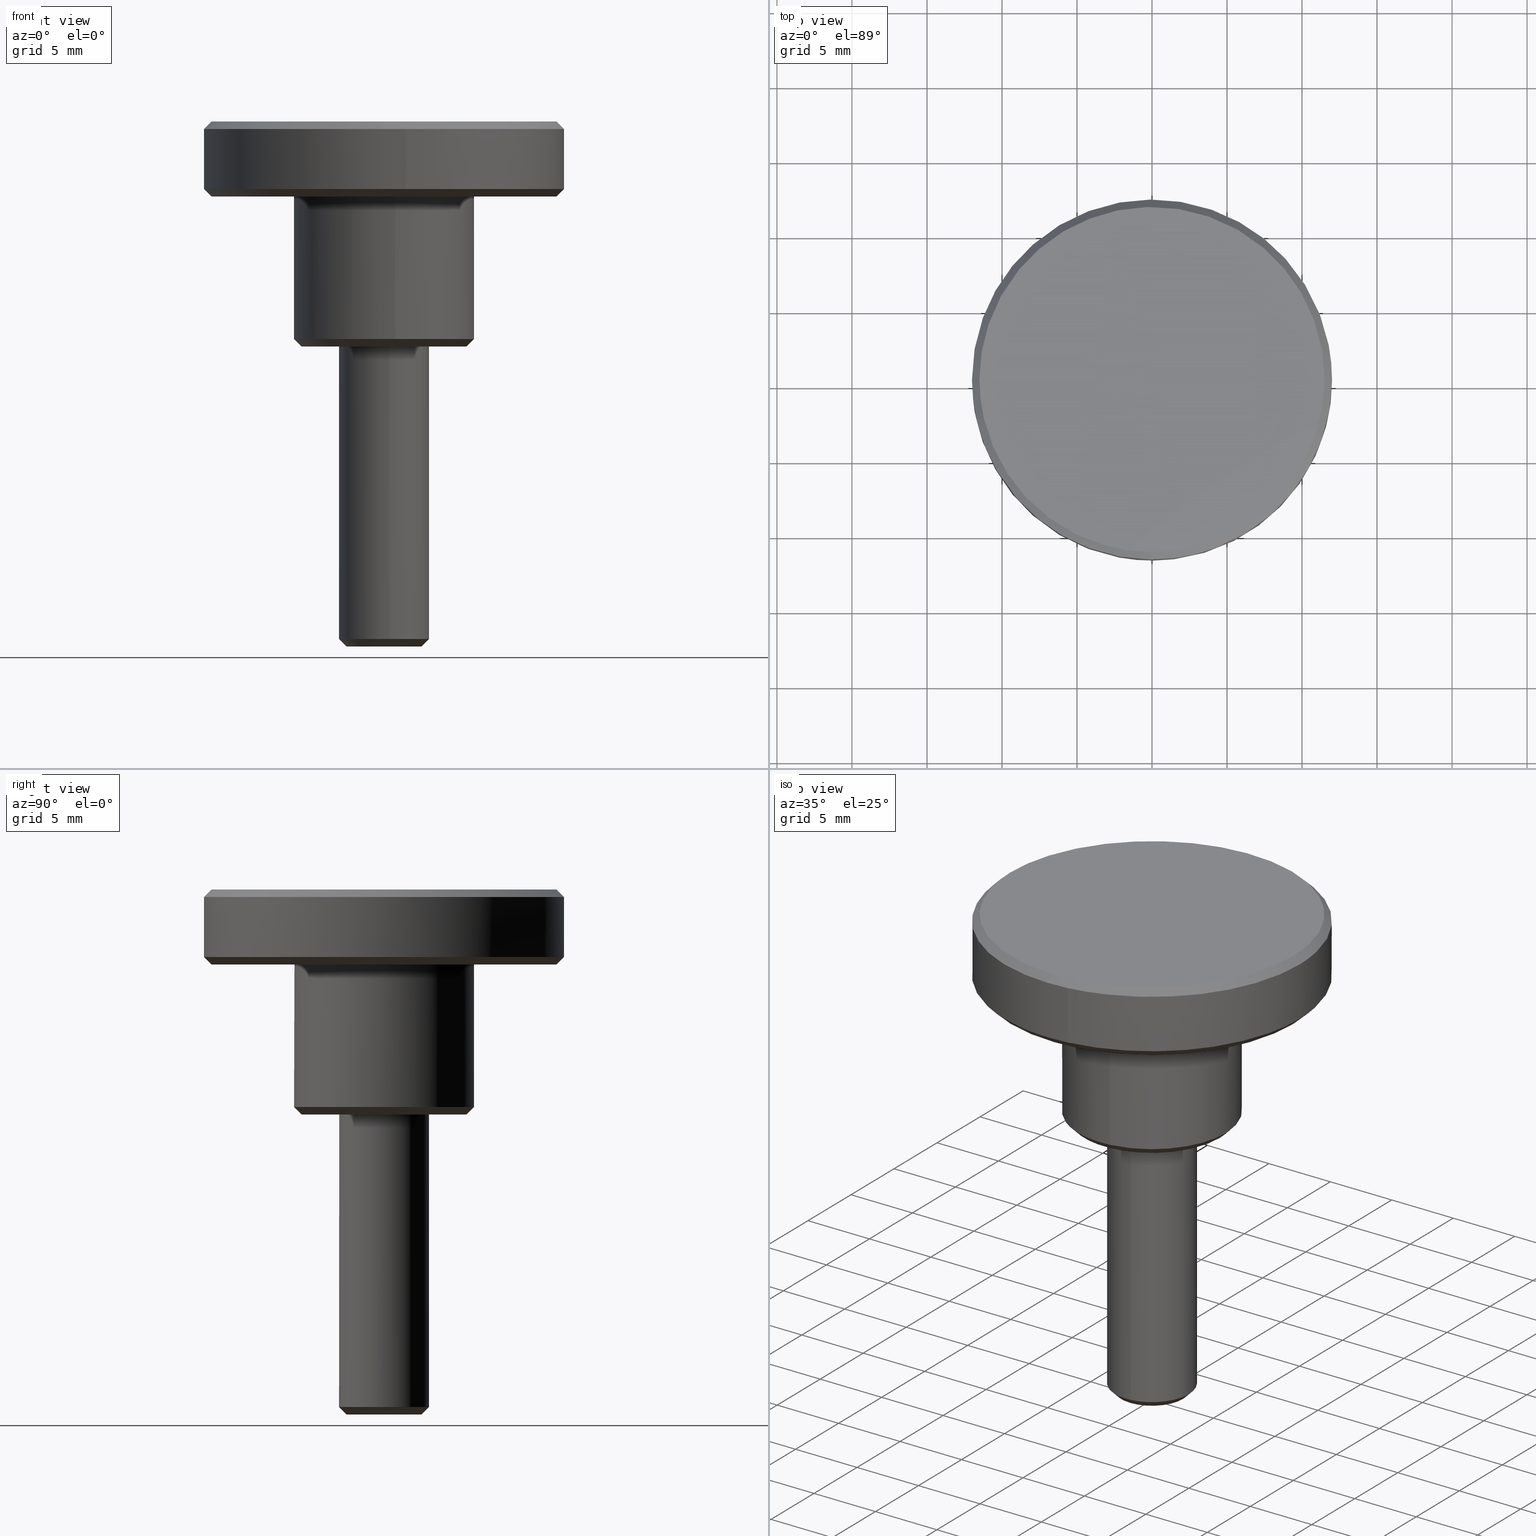
[diagram: canonical four-view strip — front | top / right | iso, engineering-drawing reading convention]
A machine part, canonical four-view strip (front | top / right | iso — engineering-drawing reading convention). The complete STEP part file that produces these views, byte-faithful:
ISO-10303-21;
HEADER;
/****************************************************************
 * Generated by software with PDE/Lib inside                    *
 * PDElib Version 4.4.1-0003, patched  Thursday August 19 11:58 *
 * International Technegroup Inc. (www.iti-oh.com)              *
 ****************************************************************/
FILE_DESCRIPTION((''),'2;1');
FILE_NAME('','2005-07-15T10:51:05',(''),(''),'','CADfix','');
FILE_SCHEMA(('AUTOMOTIVE_DESIGN'));
ENDSEC;
DATA;
#5=APPLICATION_CONTEXT('automotive design');
#6=APPLICATION_PROTOCOL_DEFINITION('Draft International Standard','automotive_design',1998,#5);
#7=PRODUCT_CONTEXT('None',#5,'mechanical');
#8=PRODUCT('knob','','None',(#7));
#9=PRODUCT_RELATED_PRODUCT_CATEGORY('part','description',(#8));
#10=PRODUCT_DEFINITION_FORMATION('None','None',#8);
#11=PRODUCT_DEFINITION_CONTEXT('part definition',#5,'design');
#12=PRODUCT_DEFINITION('None','None',#10,#11);
#18=(NAMED_UNIT(*)PLANE_ANGLE_UNIT()SI_UNIT($,.RADIAN.));
#19=DIMENSIONAL_EXPONENTS(0.0,0.0,0.0,0.0,0.0,0.0,0.0);
#20=PLANE_ANGLE_MEASURE_WITH_UNIT(PLANE_ANGLE_MEASURE(0.017453292500000),#18);
#24=(CONVERSION_BASED_UNIT('DEGREE',#20)NAMED_UNIT(#19)PLANE_ANGLE_UNIT());
#28=(NAMED_UNIT(*)SI_UNIT($,.STERADIAN.)SOLID_ANGLE_UNIT());
#32=(LENGTH_UNIT()NAMED_UNIT(*)SI_UNIT(.MILLI.,.METRE.));
#34=UNCERTAINTY_MEASURE_WITH_UNIT(LENGTH_MEASURE(0.001000000000000),#32,'DISTANCE_ACCURACY_VALUE','');
#36=(GEOMETRIC_REPRESENTATION_CONTEXT(3)GLOBAL_UNCERTAINTY_ASSIGNED_CONTEXT((#34))GLOBAL_UNIT_ASSIGNED_CONTEXT((#24,#28,#32))REPRESENTATION_CONTEXT('None','None'));
#37=AXIS2_PLACEMENT_3D('',#38,#39,#40);
#38=CARTESIAN_POINT('',(0.0,0.0,0.0));
#39=DIRECTION('',(0.0,0.0,1.0));
#40=DIRECTION('',(1.0,0.0,0.0));
#41=ADVANCED_BREP_SHAPE_REPRESENTATION('',(#37,#1267),#36);
#42=PRODUCT_DEFINITION_SHAPE('','',#12);
#43=SHAPE_DEFINITION_REPRESENTATION(#42,#41);
#44=CARTESIAN_POINT('',(-1.005485887069837,-2.275226226313193,-20.012500000000003));
#45=CARTESIAN_POINT('',(-0.514770454620326,-2.492087053684579,-20.012500000000003));
#46=CARTESIAN_POINT('',(0.021707257052205,-2.487405283622124,-20.012499999999999));
#47=CARTESIAN_POINT('',(2.509112540674328,-2.465698026569919,-20.012500000000010));
#48=CARTESIAN_POINT('',(2.487405283622124,0.021707257052205,-20.012499999999999));
#49=CARTESIAN_POINT('',(2.465698026569919,2.509112540674328,-20.012500000000010));
#50=CARTESIAN_POINT('',(-0.021707257052205,2.487405283622124,-20.012499999999999));
#51=CARTESIAN_POINT('',(-1.217825306185946,-2.755710558779538,-19.487187500000001));
#52=CARTESIAN_POINT('',(-0.623480144848552,-3.018368251830732,-19.487187499999997));
#53=CARTESIAN_POINT('',(0.026291415231194,-3.012697781331720,-19.487187500000001));
#54=CARTESIAN_POINT('',(3.038989196562915,-2.986406366100526,-19.487187499999994));
#55=CARTESIAN_POINT('',(3.012697781331720,0.026291415231194,-19.487187500000001));
#56=CARTESIAN_POINT('',(2.986406366100526,3.038989196562915,-19.487187499999994));
#57=CARTESIAN_POINT('',(-0.026291415231194,3.012697781331720,-19.487187500000001));
#65=(BOUNDED_SURFACE()B_SPLINE_SURFACE(2,1,((#44,#51),(#45,#52),(#46,#53),(#47,#54),(#48,#55),(#49,#56),(#50,#57)),.UNSPECIFIED.,.F.,.F.,.U.)B_SPLINE_SURFACE_WITH_KNOTS((3,2,2,3),(2,2),(0.0,1.397701534193629,6.389492727742304,11.381283921290979),(0.0,1.0),.UNSPECIFIED.)GEOMETRIC_REPRESENTATION_ITEM()RATIONAL_B_SPLINE_SURFACE(((0.881905454174416,0.881905454174416),(0.917989898732233,0.917989898732233),(1.0,1.0),(0.707106781186548,0.707106781186548),(1.0,1.0),(0.707106781186548,0.707106781186548),(1.0,1.0)))REPRESENTATION_ITEM('')SURFACE());
#66=CARTESIAN_POINT('',(-1.212646295969690,-2.743991428717334,-19.499999999999439));
#67=VERTEX_POINT('',#66);
#68=CARTESIAN_POINT('',(0.372382066943663,-2.976798884072443,-19.500000000000000));
#69=VERTEX_POINT('',#68);
#70=CARTESIAN_POINT('',(-1.212646295969691,-2.743991428717334,-19.499999999999439));
#71=CARTESIAN_POINT('',(-0.633346851762329,-3.000000000000000,-19.499999999999996));
#72=CARTESIAN_POINT('',(0.0,-3.0,-19.500000000000000));
#73=CARTESIAN_POINT('',(0.186913801601755,-3.000000000000000,-19.500000000000004));
#74=CARTESIAN_POINT('',(0.372382066943663,-2.976798884072443,-19.500000000000000));
#82=(BOUNDED_CURVE()B_SPLINE_CURVE(2,(#70,#71,#72,#73,#74),.UNSPECIFIED.,.F.,.U.)B_SPLINE_CURVE_WITH_KNOTS((3,2,3),(0.181361578459268,0.250000000000000,0.271473819102889),.UNSPECIFIED.)CURVE()GEOMETRIC_REPRESENTATION_ITEM()RATIONAL_B_SPLINE_CURVE((0.883326595751182,0.919585087122641,1.0,0.974841856010948,0.954005643485778))REPRESENTATION_ITEM(''));
#83=EDGE_CURVE('',#67,#69,#82,.T.);
#84=ORIENTED_EDGE('',*,*,#83,.F.);
#85=CARTESIAN_POINT('',(-1.010538579982970,-2.286659523928262,-19.999999999998838));
#86=VERTEX_POINT('',#85);
#87=CARTESIAN_POINT('',(-1.010538579982970,-2.286659523928262,-19.999999999998838));
#88=CARTESIAN_POINT('',(-1.212646295969690,-2.743991428717334,-19.499999999999439));
#89=QUASI_UNIFORM_CURVE('',1,(#87,#88),.UNSPECIFIED.,.F.,.U.);
#90=EDGE_CURVE('',#86,#67,#89,.T.);
#91=ORIENTED_EDGE('',*,*,#90,.F.);
#92=CARTESIAN_POINT('',(2.500000000000000,0.0,-20.0));
#93=VERTEX_POINT('',#92);
#94=CARTESIAN_POINT('',(2.500000000000000,0.0,-20.0));
#95=CARTESIAN_POINT('',(2.500000000000000,-2.500000000000000,-19.999999999999996));
#96=CARTESIAN_POINT('',(0.0,-2.500000000000000,-20.0));
#97=CARTESIAN_POINT('',(-0.527789043144343,-2.500000000000000,-20.000000000000004));
#98=CARTESIAN_POINT('',(-1.010538579982970,-2.286659523928262,-19.999999999998838));
#106=(BOUNDED_CURVE()B_SPLINE_CURVE(2,(#94,#95,#96,#97,#98),.UNSPECIFIED.,.F.,.U.)B_SPLINE_CURVE_WITH_KNOTS((3,2,3),(0.500000000000000,0.750000000000000,0.818638421541817),.UNSPECIFIED.)CURVE()GEOMETRIC_REPRESENTATION_ITEM()RATIONAL_B_SPLINE_CURVE((1.0,0.707106781186548,1.0,0.919585087121370,0.883326595750036))REPRESENTATION_ITEM(''));
#107=EDGE_CURVE('',#93,#86,#106,.T.);
#108=ORIENTED_EDGE('',*,*,#107,.F.);
#109=CARTESIAN_POINT('',(-0.021816338889842,2.499904807678794,-19.999999999980378));
#110=VERTEX_POINT('',#109);
#111=CARTESIAN_POINT('',(-0.021816338889842,2.499904807678794,-19.999999999980385));
#112=CARTESIAN_POINT('',(-0.010908377195498,2.500000000000000,-19.999999999999996));
#113=CARTESIAN_POINT('',(0.0,2.500000000000000,-20.0));
#114=CARTESIAN_POINT('',(2.500000000000000,2.500000000000000,-19.999999999999996));
#115=CARTESIAN_POINT('',(2.500000000000000,0.0,-20.0));
#123=(BOUNDED_CURVE()B_SPLINE_CURVE(2,(#111,#112,#113,#114,#115),.UNSPECIFIED.,.F.,.U.)B_SPLINE_CURVE_WITH_KNOTS((3,2,3),(0.248460105644758,0.250000000000000,0.500000000000000),.UNSPECIFIED.)CURVE()GEOMETRIC_REPRESENTATION_ITEM()RATIONAL_B_SPLINE_CURVE((0.996414028053530,0.998195901542642,1.0,0.707106781186548,1.0))REPRESENTATION_ITEM(''));
#124=EDGE_CURVE('',#110,#93,#123,.T.);
#125=ORIENTED_EDGE('',*,*,#124,.F.);
#126=CARTESIAN_POINT('',(-0.026179606512021,2.999885769192334,-19.500000000000000));
#127=VERTEX_POINT('',#126);
#128=CARTESIAN_POINT('',(-0.021816338889842,2.499904807678794,-19.999999999980378));
#129=CARTESIAN_POINT('',(-0.026179606512021,2.999885769192334,-19.500000000000000));
#130=QUASI_UNIFORM_CURVE('',1,(#128,#129),.UNSPECIFIED.,.F.,.U.);
#131=EDGE_CURVE('',#110,#127,#130,.T.);
#132=ORIENTED_EDGE('',*,*,#131,.T.);
#133=CARTESIAN_POINT('',(3.0,0.0,-19.500000000000000));
#134=VERTEX_POINT('',#133);
#135=CARTESIAN_POINT('',(3.0,0.0,-19.500000000000000));
#136=CARTESIAN_POINT('',(3.0,3.0,-19.500000000000004));
#137=CARTESIAN_POINT('',(0.0,3.0,-19.500000000000000));
#138=CARTESIAN_POINT('',(-0.013090052495911,3.000000000000000,-19.500000000000007));
#139=CARTESIAN_POINT('',(-0.026179606512021,2.999885769192333,-19.500000000000004));
#147=(BOUNDED_CURVE()B_SPLINE_CURVE(2,(#135,#136,#137,#138,#139),.UNSPECIFIED.,.F.,.U.)B_SPLINE_CURVE_WITH_KNOTS((3,2,3),(0.500000000000000,0.750000000000000,0.751539894338957),.UNSPECIFIED.)CURVE()GEOMETRIC_REPRESENTATION_ITEM()RATIONAL_B_SPLINE_CURVE((1.0,0.707106781186548,1.0,0.998195901561721,0.996414028091219))REPRESENTATION_ITEM(''));
#148=EDGE_CURVE('',#134,#127,#147,.T.);
#149=ORIENTED_EDGE('',*,*,#148,.F.);
#150=CARTESIAN_POINT('',(0.372382066943663,-2.976798884072443,-19.500000000000000));
#151=CARTESIAN_POINT('',(3.000000000000000,-2.648097539052714,-19.499999999999996));
#152=CARTESIAN_POINT('',(3.0,0.0,-19.500000000000000));
#160=(BOUNDED_CURVE()B_SPLINE_CURVE(2,(#150,#151,#152),.UNSPECIFIED.,.F.,.U.)B_SPLINE_CURVE_WITH_KNOTS((3,3),(0.271473819102889,0.500000000000000),.UNSPECIFIED.)CURVE()GEOMETRIC_REPRESENTATION_ITEM()RATIONAL_B_SPLINE_CURVE((0.954005643485778,0.732264925175600,1.0))REPRESENTATION_ITEM(''));
#161=EDGE_CURVE('',#69,#134,#160,.T.);
#162=ORIENTED_EDGE('',*,*,#161,.F.);
#163=EDGE_LOOP('',(#84,#91,#108,#125,#132,#149,#162));
#164=FACE_OUTER_BOUND('',#163,.T.);
#165=ADVANCED_FACE('',(#164),#65,.T.);
#166=CARTESIAN_POINT('',(-0.021707257052205,2.487405283622124,-20.012499999999999));
#167=CARTESIAN_POINT('',(-2.509112540674328,2.465698026569919,-20.012500000000010));
#168=CARTESIAN_POINT('',(-2.487405283622124,-0.021707257052205,-20.012499999999999));
#169=CARTESIAN_POINT('',(-2.473400348126789,-1.626513910610781,-20.012500000000006));
#170=CARTESIAN_POINT('',(-1.005485887069837,-2.275226226313193,-20.012500000000003));
#171=CARTESIAN_POINT('',(-0.026291415231194,3.012697781331720,-19.487187500000001));
#172=CARTESIAN_POINT('',(-3.038989196562915,2.986406366100526,-19.487187499999994));
#173=CARTESIAN_POINT('',(-3.012697781331720,-0.026291415231194,-19.487187500000001));
#174=CARTESIAN_POINT('',(-2.995735270890699,-1.970002589472146,-19.487187499999997));
#175=CARTESIAN_POINT('',(-1.217825306185946,-2.755710558779538,-19.487187500000001));
#183=(BOUNDED_SURFACE()B_SPLINE_SURFACE(2,1,((#166,#171),(#167,#172),(#168,#173),(#169,#174),(#170,#175)),.UNSPECIFIED.,.F.,.F.,.U.)B_SPLINE_SURFACE_WITH_KNOTS((3,2,3),(2,2),(0.0,4.991791193548674,8.585880852903719),(0.0,1.0),.UNSPECIFIED.)GEOMETRIC_REPRESENTATION_ITEM()RATIONAL_B_SPLINE_SURFACE(((1.0,1.0),(0.707106781186548,0.707106781186548),(1.0,1.0),(0.789116882454314,0.789116882454314),(0.881905454174416,0.881905454174416)))REPRESENTATION_ITEM('')SURFACE());
#184=CARTESIAN_POINT('',(-3.0,0.0,-19.500000000000000));
#185=VERTEX_POINT('',#184);
#186=CARTESIAN_POINT('',(-3.0,0.0,-19.500000000000000));
#187=CARTESIAN_POINT('',(-2.999999999999999,-1.954110007765768,-19.499999999999989));
#188=CARTESIAN_POINT('',(-1.212646295969691,-2.743991428717334,-19.499999999999439));
#196=(BOUNDED_CURVE()B_SPLINE_CURVE(2,(#186,#187,#188),.UNSPECIFIED.,.F.,.U.)B_SPLINE_CURVE_WITH_KNOTS((3,3),(0.0,0.181361578459268),.UNSPECIFIED.)CURVE()GEOMETRIC_REPRESENTATION_ITEM()RATIONAL_B_SPLINE_CURVE((1.0,0.787521694063906,0.883326595751182))REPRESENTATION_ITEM(''));
#197=EDGE_CURVE('',#185,#67,#196,.T.);
#198=ORIENTED_EDGE('',*,*,#197,.F.);
#199=CARTESIAN_POINT('',(-0.026179606512021,2.999885769192334,-19.500000000000004));
#200=CARTESIAN_POINT('',(-3.000000000000000,2.973933631717919,-19.500000000000004));
#201=CARTESIAN_POINT('',(-3.0,0.0,-19.500000000000000));
#209=(BOUNDED_CURVE()B_SPLINE_CURVE(2,(#199,#200,#201),.UNSPECIFIED.,.F.,.U.)B_SPLINE_CURVE_WITH_KNOTS((3,3),(0.751539894338956,1.0),.UNSPECIFIED.)CURVE()GEOMETRIC_REPRESENTATION_ITEM()RATIONAL_B_SPLINE_CURVE((0.996414028091220,0.708910879624826,1.0))REPRESENTATION_ITEM(''));
#210=EDGE_CURVE('',#127,#185,#209,.T.);
#211=ORIENTED_EDGE('',*,*,#210,.F.);
#212=ORIENTED_EDGE('',*,*,#131,.F.);
#213=CARTESIAN_POINT('',(-2.500000000000000,0.0,-20.0));
#214=VERTEX_POINT('',#213);
#215=CARTESIAN_POINT('',(-2.500000000000000,0.0,-20.0));
#216=CARTESIAN_POINT('',(-2.500000000000000,2.478278026202450,-20.000000000000004));
#217=CARTESIAN_POINT('',(-0.021816338889842,2.499904807678794,-19.999999999980385));
#225=(BOUNDED_CURVE()B_SPLINE_CURVE(2,(#215,#216,#217),.UNSPECIFIED.,.F.,.U.)B_SPLINE_CURVE_WITH_KNOTS((3,3),(0.0,0.248460105644758),.UNSPECIFIED.)CURVE()GEOMETRIC_REPRESENTATION_ITEM()RATIONAL_B_SPLINE_CURVE((1.0,0.708910879643906,0.996414028053530))REPRESENTATION_ITEM(''));
#226=EDGE_CURVE('',#214,#110,#225,.T.);
#227=ORIENTED_EDGE('',*,*,#226,.F.);
#228=CARTESIAN_POINT('',(-1.010538579982970,-2.286659523928262,-19.999999999998838));
#229=CARTESIAN_POINT('',(-2.500000000000000,-1.628425006459115,-20.000000000000004));
#230=CARTESIAN_POINT('',(-2.500000000000000,0.0,-20.0));
#238=(BOUNDED_CURVE()B_SPLINE_CURVE(2,(#228,#229,#230),.UNSPECIFIED.,.F.,.U.)B_SPLINE_CURVE_WITH_KNOTS((3,3),(0.818638421541816,1.0),.UNSPECIFIED.)CURVE()GEOMETRIC_REPRESENTATION_ITEM()RATIONAL_B_SPLINE_CURVE((0.883326595750036,0.787521694065176,1.0))REPRESENTATION_ITEM(''));
#239=EDGE_CURVE('',#86,#214,#238,.T.);
#240=ORIENTED_EDGE('',*,*,#239,.F.);
#241=ORIENTED_EDGE('',*,*,#90,.T.);
#242=EDGE_LOOP('',(#198,#211,#212,#227,#240,#241));
#243=FACE_OUTER_BOUND('',#242,.T.);
#244=ADVANCED_FACE('',(#243),#183,.T.);
#245=CARTESIAN_POINT('',(-11.191331034639012,-2.591672418174083,15.012500000000003));
#246=CARTESIAN_POINT('',(-11.498961770299591,-1.263264794176366,15.012500000000003));
#247=CARTESIAN_POINT('',(-11.487062591199610,0.100246076537570,15.012499999999999));
#248=CARTESIAN_POINT('',(-11.386816514662039,11.587308667737178,15.012500000000008));
#249=CARTESIAN_POINT('',(0.100246076537570,11.487062591199610,15.012499999999999));
#250=CARTESIAN_POINT('',(11.587308667737178,11.386816514662039,15.012500000000008));
#251=CARTESIAN_POINT('',(11.487062591199610,-0.100246076537570,15.012499999999999));
#252=CARTESIAN_POINT('',(11.386816514662039,-11.587308667737178,15.012500000000008));
#253=CARTESIAN_POINT('',(-0.100246076537570,-11.487062591199610,15.012499999999999));
#254=CARTESIAN_POINT('',(-11.703100008230697,-2.710187144369708,14.487187499999997));
#255=CARTESIAN_POINT('',(-12.024798406204811,-1.321032697305058,14.487187500000001));
#256=CARTESIAN_POINT('',(-12.012355088909320,0.104830234716560,14.487187499999999));
#257=CARTESIAN_POINT('',(-11.907524854192760,12.117185323625877,14.487187500000005));
#258=CARTESIAN_POINT('',(0.104830234716560,12.012355088909320,14.487187499999999));
#259=CARTESIAN_POINT('',(12.117185323625877,11.907524854192760,14.487187500000005));
#260=CARTESIAN_POINT('',(12.012355088909320,-0.104830234716560,14.487187499999999));
#261=CARTESIAN_POINT('',(11.907524854192760,-12.117185323625877,14.487187500000005));
#262=CARTESIAN_POINT('',(-0.104830234716560,-12.012355088909320,14.487187499999999));
#270=(BOUNDED_SURFACE()B_SPLINE_SURFACE(2,1,((#245,#254),(#246,#255),(#247,#256),(#248,#257),(#249,#258),(#250,#259),(#251,#260),(#252,#261),(#253,#262)),.UNSPECIFIED.,.F.,.F.,.U.)B_SPLINE_SURFACE_WITH_KNOTS((3,2,2,2,3),(2,2),(0.0,3.184556710236832,23.088036149217022,42.991515588197210,62.894995027177401),(0.0,1.0),.UNSPECIFIED.)GEOMETRIC_REPRESENTATION_ITEM()RATIONAL_B_SPLINE_SURFACE(((0.921270302782944,0.921270302782944),(0.953137084989848,0.953137084989848),(1.0,1.0),(0.707106781186548,0.707106781186548),(1.0,1.0),(0.707106781186548,0.707106781186548),(1.0,1.0),(0.707106781186548,0.707106781186548),(1.0,1.0)))REPRESENTATION_ITEM('')SURFACE());
#271=CARTESIAN_POINT('',(-11.690617838139930,-2.707296541319701,14.499999999996790));
#272=VERTEX_POINT('',#271);
#273=CARTESIAN_POINT('',(-12.0,0.0,14.500000000000000));
#274=VERTEX_POINT('',#273);
#275=CARTESIAN_POINT('',(-11.690617838139930,-2.707296541319702,14.499999999996792));
#276=CARTESIAN_POINT('',(-12.0,-1.371325928185162,14.499999999999998));
#277=CARTESIAN_POINT('',(-12.0,0.0,14.500000000000000));
#285=(BOUNDED_CURVE()B_SPLINE_CURVE(2,(#275,#276,#277),.UNSPECIFIED.,.F.,.U.)B_SPLINE_CURVE_WITH_KNOTS((3,3),(0.961422971783849,1.0),.UNSPECIFIED.)CURVE()GEOMETRIC_REPRESENTATION_ITEM()RATIONAL_B_SPLINE_CURVE((0.923556557441553,0.954804200134057,1.0))REPRESENTATION_ITEM(''));
#286=EDGE_CURVE('',#272,#274,#285,.T.);
#287=ORIENTED_EDGE('',*,*,#286,.F.);
#288=CARTESIAN_POINT('',(-11.203508761551619,-2.594492518757125,14.999999999997771));
#289=VERTEX_POINT('',#288);
#290=CARTESIAN_POINT('',(-11.203508761551619,-2.594492518757125,14.999999999997771));
#291=CARTESIAN_POINT('',(-11.690617838139930,-2.707296541319701,14.499999999996790));
#292=QUASI_UNIFORM_CURVE('',1,(#290,#291),.UNSPECIFIED.,.F.,.U.);
#293=EDGE_CURVE('',#289,#272,#292,.T.);
#294=ORIENTED_EDGE('',*,*,#293,.F.);
#295=CARTESIAN_POINT('',(-11.500000000000000,0.0,15.0));
#296=VERTEX_POINT('',#295);
#297=CARTESIAN_POINT('',(-11.500000000000000,0.0,15.0));
#298=CARTESIAN_POINT('',(-11.500000000000002,-1.314187347836439,15.0));
#299=CARTESIAN_POINT('',(-11.203508761551621,-2.594492518757125,14.999999999997772));
#307=(BOUNDED_CURVE()B_SPLINE_CURVE(2,(#297,#298,#299),.UNSPECIFIED.,.F.,.U.)B_SPLINE_CURVE_WITH_KNOTS((3,3),(0.500000000000000,0.538577028215936),.UNSPECIFIED.)CURVE()GEOMETRIC_REPRESENTATION_ITEM()RATIONAL_B_SPLINE_CURVE((1.0,0.954804200134309,0.923556557441902))REPRESENTATION_ITEM(''));
#308=EDGE_CURVE('',#296,#289,#307,.T.);
#309=ORIENTED_EDGE('',*,*,#308,.F.);
#310=CARTESIAN_POINT('',(11.500000000000000,0.0,15.0));
#311=VERTEX_POINT('',#310);
#312=CARTESIAN_POINT('',(11.500000000000000,0.0,15.0));
#313=CARTESIAN_POINT('',(11.500000000000000,11.500000000000000,14.999999999999995));
#314=CARTESIAN_POINT('',(0.0,11.500000000000000,15.0));
#315=CARTESIAN_POINT('',(-11.500000000000000,11.500000000000000,14.999999999999995));
#316=CARTESIAN_POINT('',(-11.500000000000000,0.0,15.0));
#324=(BOUNDED_CURVE()B_SPLINE_CURVE(2,(#312,#313,#314,#315,#316),.UNSPECIFIED.,.F.,.U.)B_SPLINE_CURVE_WITH_KNOTS((3,2,3),(0.0,0.250000000000000,0.500000000000000),.UNSPECIFIED.)CURVE()GEOMETRIC_REPRESENTATION_ITEM()RATIONAL_B_SPLINE_CURVE((1.0,0.707106781186548,1.0,0.707106781186548,1.0))REPRESENTATION_ITEM(''));
#325=EDGE_CURVE('',#311,#296,#324,.T.);
#326=ORIENTED_EDGE('',*,*,#325,.F.);
#327=CARTESIAN_POINT('',(-0.100355158268705,-11.499562115242711,14.999999999994900));
#328=VERTEX_POINT('',#327);
#329=CARTESIAN_POINT('',(-0.100355158268705,-11.499562115242719,14.999999999994898));
#330=CARTESIAN_POINT('',(-0.050178534475431,-11.500000000000002,15.000000000000004));
#331=CARTESIAN_POINT('',(0.0,-11.500000000000000,15.0));
#332=CARTESIAN_POINT('',(11.500000000000000,-11.500000000000000,14.999999999999995));
#333=CARTESIAN_POINT('',(11.500000000000000,0.0,15.0));
#341=(BOUNDED_CURVE()B_SPLINE_CURVE(2,(#329,#330,#331,#332,#333),.UNSPECIFIED.,.F.,.U.)B_SPLINE_CURVE_WITH_KNOTS((3,2,3),(0.748460105663868,0.750000000000000,1.0),.UNSPECIFIED.)CURVE()GEOMETRIC_REPRESENTATION_ITEM()RATIONAL_B_SPLINE_CURVE((0.996414028097757,0.998195901565031,1.0,0.707106781186548,1.0))REPRESENTATION_ITEM(''));
#342=EDGE_CURVE('',#328,#311,#341,.T.);
#343=ORIENTED_EDGE('',*,*,#342,.F.);
#344=CARTESIAN_POINT('',(-0.104718426021248,-11.999543076775240,14.499999999994460));
#345=VERTEX_POINT('',#344);
#346=CARTESIAN_POINT('',(-0.100355158268705,-11.499562115242711,14.999999999994900));
#347=CARTESIAN_POINT('',(-0.104718426021248,-11.999543076775240,14.499999999994460));
#348=QUASI_UNIFORM_CURVE('',1,(#346,#347),.UNSPECIFIED.,.F.,.U.);
#349=EDGE_CURVE('',#328,#345,#348,.T.);
#350=ORIENTED_EDGE('',*,*,#349,.T.);
#351=CARTESIAN_POINT('',(1.489527390637061,-11.907195646014481,14.499999999999980));
#352=VERTEX_POINT('',#351);
#353=CARTESIAN_POINT('',(1.489527390637061,-11.907195646014477,14.499999999999979));
#354=CARTESIAN_POINT('',(0.747654762704336,-11.999999999999995,14.500000000000000));
#355=CARTESIAN_POINT('',(0.0,-12.0,14.500000000000000));
#356=CARTESIAN_POINT('',(-0.052360209889139,-12.0,14.500000000000002));
#357=CARTESIAN_POINT('',(-0.104718426021248,-11.999543076775232,14.499999999994460));
#365=(BOUNDED_CURVE()B_SPLINE_CURVE(2,(#353,#354,#355,#356,#357),.UNSPECIFIED.,.F.,.U.)B_SPLINE_CURVE_WITH_KNOTS((3,2,3),(0.728526193320330,0.750000000000000,0.751539894336183),.UNSPECIFIED.)CURVE()GEOMETRIC_REPRESENTATION_ITEM()RATIONAL_B_SPLINE_CURVE((0.954005667594471,0.974841870565655,1.0,0.998195901564972,0.996414028097639))REPRESENTATION_ITEM(''));
#366=EDGE_CURVE('',#352,#345,#365,.T.);
#367=ORIENTED_EDGE('',*,*,#366,.F.);
#368=CARTESIAN_POINT('',(12.0,0.0,14.500000000000000));
#369=VERTEX_POINT('',#368);
#370=CARTESIAN_POINT('',(12.0,0.0,14.500000000000000));
#371=CARTESIAN_POINT('',(12.000000000000002,-10.592390942575433,14.500000000000002));
#372=CARTESIAN_POINT('',(1.489527390637061,-11.907195646014477,14.499999999999979));
#380=(BOUNDED_CURVE()B_SPLINE_CURVE(2,(#370,#371,#372),.UNSPECIFIED.,.F.,.U.)B_SPLINE_CURVE_WITH_KNOTS((3,3),(0.500000000000000,0.728526193320330),.UNSPECIFIED.)CURVE()GEOMETRIC_REPRESENTATION_ITEM()RATIONAL_B_SPLINE_CURVE((1.0,0.732264910620893,0.954005667594471))REPRESENTATION_ITEM(''));
#381=EDGE_CURVE('',#369,#352,#380,.T.);
#382=ORIENTED_EDGE('',*,*,#381,.F.);
#383=CARTESIAN_POINT('',(-0.104707315146141,11.999543173722550,14.499999999999980));
#384=VERTEX_POINT('',#383);
#385=CARTESIAN_POINT('',(-0.104707315146141,11.999543173722550,14.499999999999979));
#386=CARTESIAN_POINT('',(-0.052354654113988,11.999999999999996,14.499999999999998));
#387=CARTESIAN_POINT('',(0.0,12.0,14.500000000000000));
#388=CARTESIAN_POINT('',(12.0,12.0,14.500000000000000));
#389=CARTESIAN_POINT('',(12.0,0.0,14.500000000000000));
#397=(BOUNDED_CURVE()B_SPLINE_CURVE(2,(#385,#386,#387,#388,#389),.UNSPECIFIED.,.F.,.U.)B_SPLINE_CURVE_WITH_KNOTS((3,2,3),(0.248460268762356,0.250000000000000,0.500000000000000),.UNSPECIFIED.)CURVE()GEOMETRIC_REPRESENTATION_ITEM()RATIONAL_B_SPLINE_CURVE((0.996414405553603,0.998196092646795,1.0,0.707106781186548,1.0))REPRESENTATION_ITEM(''));
#398=EDGE_CURVE('',#384,#369,#397,.T.);
#399=ORIENTED_EDGE('',*,*,#398,.F.);
#400=CARTESIAN_POINT('',(-12.0,0.0,14.500000000000000));
#401=CARTESIAN_POINT('',(-12.0,11.895745542278181,14.500000000000004));
#402=CARTESIAN_POINT('',(-0.104707315146141,11.999543173722550,14.499999999999979));
#410=(BOUNDED_CURVE()B_SPLINE_CURVE(2,(#400,#401,#402),.UNSPECIFIED.,.F.,.U.)B_SPLINE_CURVE_WITH_KNOTS((3,3),(0.0,0.248460268762356),.UNSPECIFIED.)CURVE()GEOMETRIC_REPRESENTATION_ITEM()RATIONAL_B_SPLINE_CURVE((1.0,0.708910688539752,0.996414405553603))REPRESENTATION_ITEM(''));
#411=EDGE_CURVE('',#274,#384,#410,.T.);
#412=ORIENTED_EDGE('',*,*,#411,.F.);
#413=EDGE_LOOP('',(#287,#294,#309,#326,#343,#350,#367,#382,#399,#412));
#414=FACE_OUTER_BOUND('',#413,.T.);
#415=ADVANCED_FACE('',(#414),#270,.T.);
#416=CARTESIAN_POINT('',(-0.100246076537570,-11.487062591199610,15.012499999999999));
#417=CARTESIAN_POINT('',(-9.149637732336018,-11.408089746632660,15.012500000000003));
#418=CARTESIAN_POINT('',(-11.191331034639012,-2.591672418174083,15.012500000000003));
#419=CARTESIAN_POINT('',(-0.104830234716560,-12.012355088909320,14.487187499999999));
#420=CARTESIAN_POINT('',(-9.568042004045996,-11.929770890922430,14.487187500000001));
#421=CARTESIAN_POINT('',(-11.703100008230697,-2.710187144369708,14.487187499999997));
#429=(BOUNDED_SURFACE()B_SPLINE_SURFACE(2,1,((#416,#419),(#417,#420),(#418,#421)),.UNSPECIFIED.,.F.,.F.,.U.)B_SPLINE_SURFACE_WITH_KNOTS((3,3),(2,2),(0.0,16.645809910381690),(0.0,1.0),.UNSPECIFIED.)GEOMETRIC_REPRESENTATION_ITEM()RATIONAL_B_SPLINE_SURFACE(((1.0,1.0),(0.753969696196700,0.753969696196700),(0.921270302782944,0.921270302782944)))REPRESENTATION_ITEM('')SURFACE());
#430=CARTESIAN_POINT('',(-0.104718426021248,-11.999543076775240,14.499999999994467));
#431=CARTESIAN_POINT('',(-9.557837021778731,-11.917046960510007,14.500000000000000));
#432=CARTESIAN_POINT('',(-11.690617838139929,-2.707296541319702,14.499999999996792));
#440=(BOUNDED_CURVE()B_SPLINE_CURVE(2,(#430,#431,#432),.UNSPECIFIED.,.F.,.U.)B_SPLINE_CURVE_WITH_KNOTS((3,3),(0.751539894336182,0.961422971783848),.UNSPECIFIED.)CURVE()GEOMETRIC_REPRESENTATION_ITEM()RATIONAL_B_SPLINE_CURVE((0.996414028097640,0.753549905437658,0.923556557441552))REPRESENTATION_ITEM(''));
#441=EDGE_CURVE('',#345,#272,#440,.T.);
#442=ORIENTED_EDGE('',*,*,#441,.F.);
#443=ORIENTED_EDGE('',*,*,#349,.F.);
#444=CARTESIAN_POINT('',(-11.203508761551614,-2.594492518757126,14.999999999997774));
#445=CARTESIAN_POINT('',(-9.159593812549700,-11.420503337157896,14.999999999999993));
#446=CARTESIAN_POINT('',(-0.100355158268705,-11.499562115242716,14.999999999994902));
#454=(BOUNDED_CURVE()B_SPLINE_CURVE(2,(#444,#445,#446),.UNSPECIFIED.,.F.,.U.)B_SPLINE_CURVE_WITH_KNOTS((3,3),(0.538577028215936,0.748460105663868),.UNSPECIFIED.)CURVE()GEOMETRIC_REPRESENTATION_ITEM()RATIONAL_B_SPLINE_CURVE((0.923556557441902,0.753549905437367,0.996414028097755))REPRESENTATION_ITEM(''));
#455=EDGE_CURVE('',#289,#328,#454,.T.);
#456=ORIENTED_EDGE('',*,*,#455,.F.);
#457=ORIENTED_EDGE('',*,*,#293,.T.);
#458=EDGE_LOOP('',(#442,#443,#456,#457));
#459=FACE_OUTER_BOUND('',#458,.T.);
#460=ADVANCED_FACE('',(#459),#429,.T.);
#461=CARTESIAN_POINT('',(9.406724469765697,-6.593647776452057,9.987500000000001));
#462=CARTESIAN_POINT('',(11.519179152623552,-3.579947343821037,9.987499999999999));
#463=CARTESIAN_POINT('',(11.487062591199660,0.100246076537570,9.987499999999999));
#464=CARTESIAN_POINT('',(11.386816514662092,11.587308667737231,9.987499999999999));
#465=CARTESIAN_POINT('',(-0.100246076537570,11.487062591199660,9.987499999999999));
#466=CARTESIAN_POINT('',(-11.587308667737231,11.386816514662092,9.987499999999999));
#467=CARTESIAN_POINT('',(-11.487062591199660,-0.100246076537570,9.987499999999999));
#468=CARTESIAN_POINT('',(-11.386816514662092,-11.587308667737231,9.987499999999999));
#469=CARTESIAN_POINT('',(0.100246076537570,-11.487062591199660,9.987499999999999));
#470=CARTESIAN_POINT('',(9.836885074599064,-6.895169047186953,10.512812500000004));
#471=CARTESIAN_POINT('',(12.045940310282912,-3.743654946785199,10.512812500000003));
#472=CARTESIAN_POINT('',(12.012355088909260,0.104830234716559,10.512812500000001));
#473=CARTESIAN_POINT('',(11.907524854192697,12.117185323625815,10.512812500000003));
#474=CARTESIAN_POINT('',(-0.104830234716559,12.012355088909260,10.512812500000001));
#475=CARTESIAN_POINT('',(-12.117185323625815,11.907524854192697,10.512812500000003));
#476=CARTESIAN_POINT('',(-12.012355088909260,-0.104830234716559,10.512812500000001));
#477=CARTESIAN_POINT('',(-11.907524854192697,-12.117185323625815,10.512812500000003));
#478=CARTESIAN_POINT('',(0.104830234716559,-12.012355088909260,10.512812500000001));
#486=(BOUNDED_SURFACE()B_SPLINE_SURFACE(2,1,((#461,#470),(#462,#471),(#463,#472),(#464,#473),(#465,#474),(#466,#475),(#467,#476),(#468,#477),(#469,#478)),.UNSPECIFIED.,.F.,.F.,.U.)B_SPLINE_SURFACE_WITH_KNOTS((3,2,2,2,3),(2,2),(0.0,7.961391775592033,27.864871214572119,47.768350653552197,67.671830092532289),(0.0,1.0),.UNSPECIFIED.)GEOMETRIC_REPRESENTATION_ITEM()RATIONAL_B_SPLINE_SURFACE(((0.859411254969543,0.859411254969543),(0.882842712474619,0.882842712474619),(1.0,1.0),(0.707106781186548,0.707106781186548),(1.0,1.0),(0.707106781186548,0.707106781186548),(1.0,1.0),(0.707106781186548,0.707106781186548),(1.0,1.0)))REPRESENTATION_ITEM('')SURFACE());
#487=CARTESIAN_POINT('',(11.500000000000000,0.0,10.0));
#488=VERTEX_POINT('',#487);
#489=CARTESIAN_POINT('',(9.416960160105955,-6.600822446939864,9.999999810132522));
#490=VERTEX_POINT('',#489);
#491=CARTESIAN_POINT('',(11.500000000000000,0.0,10.0));
#492=CARTESIAN_POINT('',(11.500000000000000,-3.629086533558442,9.999999999999998));
#493=CARTESIAN_POINT('',(9.416960160105957,-6.600822446939864,9.999999810132524));
#501=(BOUNDED_CURVE()B_SPLINE_CURVE(2,(#491,#492,#493),.UNSPECIFIED.,.F.,.U.)B_SPLINE_CURVE_WITH_KNOTS((3,3),(0.0,0.098673725308851),.UNSPECIFIED.)CURVE()GEOMETRIC_REPRESENTATION_ITEM()RATIONAL_B_SPLINE_CURVE((1.0,0.884396539927905,0.860049272367063))REPRESENTATION_ITEM(''));
#502=EDGE_CURVE('',#488,#490,#501,.T.);
#503=ORIENTED_EDGE('',*,*,#502,.F.);
#504=CARTESIAN_POINT('',(-11.500000000000000,0.0,10.0));
#505=VERTEX_POINT('',#504);
#506=CARTESIAN_POINT('',(-11.500000000000000,0.0,10.0));
#507=CARTESIAN_POINT('',(-11.500000000000000,11.500000000000000,10.000000000000002));
#508=CARTESIAN_POINT('',(0.0,11.500000000000000,10.0));
#509=CARTESIAN_POINT('',(11.500000000000000,11.500000000000000,10.000000000000002));
#510=CARTESIAN_POINT('',(11.500000000000000,0.0,10.0));
#518=(BOUNDED_CURVE()B_SPLINE_CURVE(2,(#506,#507,#508,#509,#510),.UNSPECIFIED.,.F.,.U.)B_SPLINE_CURVE_WITH_KNOTS((3,2,3),(0.500000000000000,0.750000000000000,1.0),.UNSPECIFIED.)CURVE()GEOMETRIC_REPRESENTATION_ITEM()RATIONAL_B_SPLINE_CURVE((1.0,0.707106781186548,1.0,0.707106781186548,1.0))REPRESENTATION_ITEM(''));
#519=EDGE_CURVE('',#505,#488,#518,.T.);
#520=ORIENTED_EDGE('',*,*,#519,.F.);
#521=CARTESIAN_POINT('',(0.100355158268703,-11.499562115242730,10.000000000005089));
#522=VERTEX_POINT('',#521);
#523=CARTESIAN_POINT('',(0.100355158268703,-11.499562115242727,10.000000000005087));
#524=CARTESIAN_POINT('',(0.050178534475429,-11.500000000000000,10.0));
#525=CARTESIAN_POINT('',(0.0,-11.500000000000000,10.0));
#526=CARTESIAN_POINT('',(-11.500000000000000,-11.500000000000000,10.000000000000002));
#527=CARTESIAN_POINT('',(-11.500000000000000,0.0,10.0));
#535=(BOUNDED_CURVE()B_SPLINE_CURVE(2,(#523,#524,#525,#526,#527),.UNSPECIFIED.,.F.,.U.)B_SPLINE_CURVE_WITH_KNOTS((3,2,3),(0.248460105663868,0.250000000000000,0.500000000000000),.UNSPECIFIED.)CURVE()GEOMETRIC_REPRESENTATION_ITEM()RATIONAL_B_SPLINE_CURVE((0.996414028097757,0.998195901565031,1.0,0.707106781186548,1.0))REPRESENTATION_ITEM(''));
#536=EDGE_CURVE('',#522,#505,#535,.T.);
#537=ORIENTED_EDGE('',*,*,#536,.F.);
#538=CARTESIAN_POINT('',(0.104718430336935,-11.999543078500480,10.500000001768409));
#539=VERTEX_POINT('',#538);
#540=CARTESIAN_POINT('',(0.100355158268703,-11.499562115242730,10.000000000005089));
#541=CARTESIAN_POINT('',(0.104718430336935,-11.999543078500480,10.500000001768409));
#542=QUASI_UNIFORM_CURVE('',1,(#540,#541),.UNSPECIFIED.,.F.,.U.);
#543=EDGE_CURVE('',#522,#539,#542,.T.);
#544=ORIENTED_EDGE('',*,*,#543,.T.);
#545=CARTESIAN_POINT('',(-12.0,0.0,10.500000000000000));
#546=VERTEX_POINT('',#545);
#547=CARTESIAN_POINT('',(-12.0,0.0,10.500000000000000));
#548=CARTESIAN_POINT('',(-12.0,-12.0,10.500000000000002));
#549=CARTESIAN_POINT('',(0.0,-12.0,10.500000000000000));
#550=CARTESIAN_POINT('',(0.052360214189687,-12.000000000000005,10.499999999999998));
#551=CARTESIAN_POINT('',(0.104718430336935,-11.999543078500484,10.500000001768411));
#559=(BOUNDED_CURVE()B_SPLINE_CURVE(2,(#547,#548,#549,#550,#551),.UNSPECIFIED.,.F.,.U.)B_SPLINE_CURVE_WITH_KNOTS((3,2,3),(0.0,0.250000000000000,0.251539894462432),.UNSPECIFIED.)CURVE()GEOMETRIC_REPRESENTATION_ITEM()RATIONAL_B_SPLINE_CURVE((1.0,0.707106781186548,1.0,0.998195901417061,0.996414027805463))REPRESENTATION_ITEM(''));
#560=EDGE_CURVE('',#546,#539,#559,.T.);
#561=ORIENTED_EDGE('',*,*,#560,.F.);
#562=CARTESIAN_POINT('',(-0.104707174263910,11.999543174951750,10.500000000000000));
#563=VERTEX_POINT('',#562);
#564=CARTESIAN_POINT('',(-0.104707174263910,11.999543174951752,10.500000000000000));
#565=CARTESIAN_POINT('',(-12.0,11.895745681947080,10.500000000000000));
#566=CARTESIAN_POINT('',(-12.0,0.0,10.500000000000000));
#574=(BOUNDED_CURVE()B_SPLINE_CURVE(2,(#564,#565,#566),.UNSPECIFIED.,.F.,.U.)B_SPLINE_CURVE_WITH_KNOTS((3,3),(0.751539729169616,1.0),.UNSPECIFIED.)CURVE()GEOMETRIC_REPRESENTATION_ITEM()RATIONAL_B_SPLINE_CURVE((0.996414410339607,0.708910686116906,1.0))REPRESENTATION_ITEM(''));
#575=EDGE_CURVE('',#563,#546,#574,.T.);
#576=ORIENTED_EDGE('',*,*,#575,.F.);
#577=CARTESIAN_POINT('',(12.0,0.0,10.500000000000000));
#578=VERTEX_POINT('',#577);
#579=CARTESIAN_POINT('',(12.0,0.0,10.500000000000000));
#580=CARTESIAN_POINT('',(12.0,12.0,10.500000000000002));
#581=CARTESIAN_POINT('',(0.0,12.0,10.500000000000000));
#582=CARTESIAN_POINT('',(-0.052354583668849,12.000000000000005,10.499999999999996));
#583=CARTESIAN_POINT('',(-0.104707174263910,11.999543174951752,10.500000000000000));
#591=(BOUNDED_CURVE()B_SPLINE_CURVE(2,(#579,#580,#581,#582,#583),.UNSPECIFIED.,.F.,.U.)B_SPLINE_CURVE_WITH_KNOTS((3,2,3),(0.500000000000000,0.750000000000000,0.751539729169616),.UNSPECIFIED.)CURVE()GEOMETRIC_REPRESENTATION_ITEM()RATIONAL_B_SPLINE_CURVE((1.0,0.707106781186548,1.0,0.998196095069641,0.996414410339607))REPRESENTATION_ITEM(''));
#592=EDGE_CURVE('',#578,#563,#591,.T.);
#593=ORIENTED_EDGE('',*,*,#592,.F.);
#594=CARTESIAN_POINT('',(9.826393352525287,-6.887814869859342,10.500000000000391));
#595=VERTEX_POINT('',#594);
#596=CARTESIAN_POINT('',(9.826393352525287,-6.887814869859342,10.500000000000391));
#597=CARTESIAN_POINT('',(12.000000000000005,-3.786872943387714,10.500000000000000));
#598=CARTESIAN_POINT('',(12.0,0.0,10.500000000000000));
#606=(BOUNDED_CURVE()B_SPLINE_CURVE(2,(#596,#597,#598),.UNSPECIFIED.,.F.,.U.)B_SPLINE_CURVE_WITH_KNOTS((3,3),(0.401326273796907,0.500000000000000),.UNSPECIFIED.)CURVE()GEOMETRIC_REPRESENTATION_ITEM()RATIONAL_B_SPLINE_CURVE((0.860049271925763,0.884396538880235,1.0))REPRESENTATION_ITEM(''));
#607=EDGE_CURVE('',#595,#578,#606,.T.);
#608=ORIENTED_EDGE('',*,*,#607,.F.);
#609=CARTESIAN_POINT('',(9.416960160105955,-6.600822446939864,9.999999810132522));
#610=CARTESIAN_POINT('',(9.826393352525287,-6.887814869859342,10.500000000000391));
#611=QUASI_UNIFORM_CURVE('',1,(#609,#610),.UNSPECIFIED.,.F.,.U.);
#612=EDGE_CURVE('',#490,#595,#611,.T.);
#613=ORIENTED_EDGE('',*,*,#612,.F.);
#614=EDGE_LOOP('',(#503,#520,#537,#544,#561,#576,#593,#608,#613));
#615=FACE_OUTER_BOUND('',#614,.T.);
#616=ADVANCED_FACE('',(#615),#486,.T.);
#617=CARTESIAN_POINT('',(0.100246076537570,-11.487062591199660,9.987499999999999));
#618=CARTESIAN_POINT('',(6.012851147515387,-11.435464068446271,9.987499999999999));
#619=CARTESIAN_POINT('',(9.406724469765697,-6.593647776452057,9.987500000000001));
#620=CARTESIAN_POINT('',(0.104830234716559,-12.012355088909260,10.512812500000001));
#621=CARTESIAN_POINT('',(6.287813138238249,-11.958397014557701,10.512812500000004));
#622=CARTESIAN_POINT('',(9.836885074599064,-6.895169047186953,10.512812500000004));
#630=(BOUNDED_SURFACE()B_SPLINE_SURFACE(2,1,((#617,#620),(#618,#621),(#619,#622)),.UNSPECIFIED.,.F.,.F.,.U.)B_SPLINE_SURFACE_WITH_KNOTS((3,3),(2,2),(0.0,11.860688764435860),(0.0,1.0),.UNSPECIFIED.)GEOMETRIC_REPRESENTATION_ITEM()RATIONAL_B_SPLINE_SURFACE(((1.0,1.0),(0.824264068711928,0.824264068711928),(0.859411254969543,0.859411254969543)))REPRESENTATION_ITEM('')SURFACE());
#631=CARTESIAN_POINT('',(9.416960160105957,-6.600822446939864,9.999999810132524));
#632=CARTESIAN_POINT('',(6.019394009839946,-11.447907445693151,10.0));
#633=CARTESIAN_POINT('',(0.100355158268703,-11.499562115242728,10.000000000005087));
#641=(BOUNDED_CURVE()B_SPLINE_CURVE(2,(#631,#632,#633),.UNSPECIFIED.,.F.,.U.)B_SPLINE_CURVE_WITH_KNOTS((3,3),(0.098673725308851,0.248460105663868),.UNSPECIFIED.)CURVE()GEOMETRIC_REPRESENTATION_ITEM()RATIONAL_B_SPLINE_CURVE((0.860049272367063,0.823090202786393,0.996414028097757))REPRESENTATION_ITEM(''));
#642=EDGE_CURVE('',#490,#522,#641,.T.);
#643=ORIENTED_EDGE('',*,*,#642,.F.);
#644=ORIENTED_EDGE('',*,*,#612,.T.);
#645=CARTESIAN_POINT('',(1.489533232262265,-11.907194915259360,10.500000000000000));
#646=VERTEX_POINT('',#645);
#647=CARTESIAN_POINT('',(1.489533232262265,-11.907194915259367,10.500000000000000));
#648=CARTESIAN_POINT('',(6.771180838092405,-11.246486017322665,10.500000000000000));
#649=CARTESIAN_POINT('',(9.826393352525285,-6.887814869859342,10.500000000000391));
#657=(BOUNDED_CURVE()B_SPLINE_CURVE(2,(#647,#648,#649),.UNSPECIFIED.,.F.,.U.)B_SPLINE_CURVE_WITH_KNOTS((3,3),(0.271473889416736,0.401326273796907),.UNSPECIFIED.)CURVE()GEOMETRIC_REPRESENTATION_ITEM()RATIONAL_B_SPLINE_CURVE((0.954005507033688,0.828008821150938,0.860049271925763))REPRESENTATION_ITEM(''));
#658=EDGE_CURVE('',#646,#595,#657,.T.);
#659=ORIENTED_EDGE('',*,*,#658,.F.);
#660=CARTESIAN_POINT('',(0.104718430336935,-11.999543078500480,10.500000001768408));
#661=CARTESIAN_POINT('',(0.799800499921066,-11.993477186904105,10.499999999999996));
#662=CARTESIAN_POINT('',(1.489533232262265,-11.907194915259359,10.500000000000002));
#670=(BOUNDED_CURVE()B_SPLINE_CURVE(2,(#660,#661,#662),.UNSPECIFIED.,.F.,.U.)B_SPLINE_CURVE_WITH_KNOTS((3,3),(0.251539894462432,0.271473889416736),.UNSPECIFIED.)CURVE()GEOMETRIC_REPRESENTATION_ITEM()RATIONAL_B_SPLINE_CURVE((0.996414027805463,0.973347603157949,0.954005507033687))REPRESENTATION_ITEM(''));
#671=EDGE_CURVE('',#539,#646,#670,.T.);
#672=ORIENTED_EDGE('',*,*,#671,.F.);
#673=ORIENTED_EDGE('',*,*,#543,.F.);
#674=EDGE_LOOP('',(#643,#644,#659,#672,#673));
#675=FACE_OUTER_BOUND('',#674,.T.);
#676=ADVANCED_FACE('',(#675),#630,.T.);
#677=CARTESIAN_POINT('',(-2.218132183033460,-5.019217655032625,-0.012499999999999));
#678=CARTESIAN_POINT('',(-1.135599143609664,-5.497619178731310,-0.012499999999999));
#679=CARTESIAN_POINT('',(0.047886863547327,-5.487291052814638,-0.012499999999999));
#680=CARTESIAN_POINT('',(5.535177916361964,-5.439404189267312,-0.012499999999999));
#681=CARTESIAN_POINT('',(5.487291052814638,0.047886863547327,-0.012499999999999));
#682=CARTESIAN_POINT('',(5.439404189267312,5.535177916361964,-0.012499999999999));
#683=CARTESIAN_POINT('',(-0.047886863547327,5.487291052814638,-0.012499999999999));
#684=CARTESIAN_POINT('',(-2.430471602149591,-5.499701987499018,0.512812499999944));
#685=CARTESIAN_POINT('',(-1.244308833837901,-6.023900376877514,0.512812499999944));
#686=CARTESIAN_POINT('',(0.052471021726316,-6.012583550524287,0.512812499999944));
#687=CARTESIAN_POINT('',(6.065054572250603,-5.960112528797970,0.512812499999944));
#688=CARTESIAN_POINT('',(6.012583550524287,0.052471021726316,0.512812499999944));
#689=CARTESIAN_POINT('',(5.960112528797970,6.065054572250603,0.512812499999944));
#690=CARTESIAN_POINT('',(-0.052471021726316,6.012583550524287,0.512812499999944));
#698=(BOUNDED_SURFACE()B_SPLINE_SURFACE(2,1,((#677,#684),(#678,#685),(#679,#686),(#680,#687),(#681,#688),(#682,#689),(#683,#690)),.UNSPECIFIED.,.F.,.F.,.U.)B_SPLINE_SURFACE_WITH_KNOTS((3,2,2,3),(2,2),(0.0,2.789459103767254,12.751813045793160,22.714166987819059),(0.0,1.0),.UNSPECIFIED.)GEOMETRIC_REPRESENTATION_ITEM()RATIONAL_B_SPLINE_SURFACE(((0.881905454174416,0.881905454174416),(0.917989898732233,0.917989898732233),(1.0,1.0),(0.707106781186548,0.707106781186548),(1.0,1.0),(0.707106781186548,0.707106781186548),(1.0,1.0)))REPRESENTATION_ITEM('')SURFACE());
#699=CARTESIAN_POINT('',(-2.425292591960359,-5.487982857427445,0.500000000002887));
#700=VERTEX_POINT('',#699);
#701=CARTESIAN_POINT('',(0.744762001883350,-5.953598034845316,0.499999999999997));
#702=VERTEX_POINT('',#701);
#703=CARTESIAN_POINT('',(-2.425292591960358,-5.487982857427446,0.500000000002887));
#704=CARTESIAN_POINT('',(-1.266693703547750,-6.000000000000001,0.499999999999945));
#705=CARTESIAN_POINT('',(0.0,-6.0,0.499999999999945));
#706=CARTESIAN_POINT('',(0.373826524722945,-5.999999999999999,0.499999999999945));
#707=CARTESIAN_POINT('',(0.744762001883350,-5.953598034845316,0.499999999999997));
#715=(BOUNDED_CURVE()B_SPLINE_CURVE(2,(#703,#704,#705,#706,#707),.UNSPECIFIED.,.F.,.U.)B_SPLINE_CURVE_WITH_KNOTS((3,2,3),(0.181361578458117,0.250000000000000,0.271473758710190),.UNSPECIFIED.)CURVE()GEOMETRIC_REPRESENTATION_ITEM()RATIONAL_B_SPLINE_CURVE((0.883326595749966,0.919585087121293,1.0,0.974841926765397,0.954005760684819))REPRESENTATION_ITEM(''));
#716=EDGE_CURVE('',#700,#702,#715,.T.);
#717=ORIENTED_EDGE('',*,*,#716,.F.);
#718=CARTESIAN_POINT('',(-2.223184875972508,-5.030650952638773,3.482324E-012));
#719=VERTEX_POINT('',#718);
#720=CARTESIAN_POINT('',(-2.223184875972508,-5.030650952638773,3.482324E-012));
#721=CARTESIAN_POINT('',(-2.425292591960359,-5.487982857427445,0.500000000002887));
#722=QUASI_UNIFORM_CURVE('',1,(#720,#721),.UNSPECIFIED.,.F.,.U.);
#723=EDGE_CURVE('',#719,#700,#722,.T.);
#724=ORIENTED_EDGE('',*,*,#723,.F.);
#725=CARTESIAN_POINT('',(5.500000000000000,0.0,0.0));
#726=VERTEX_POINT('',#725);
#727=CARTESIAN_POINT('',(5.500000000000000,0.0,0.0));
#728=CARTESIAN_POINT('',(5.500000000000001,-5.500000000000001,0.0));
#729=CARTESIAN_POINT('',(0.0,-5.500000000000000,0.0));
#730=CARTESIAN_POINT('',(-1.161135894928503,-5.500000000000001,0.0));
#731=CARTESIAN_POINT('',(-2.223184875972508,-5.030650952638773,3.482324E-012));
#739=(BOUNDED_CURVE()B_SPLINE_CURVE(2,(#727,#728,#729,#730,#731),.UNSPECIFIED.,.F.,.U.)B_SPLINE_CURVE_WITH_KNOTS((3,2,3),(0.500000000000000,0.750000000000000,0.818638421542412),.UNSPECIFIED.)CURVE()GEOMETRIC_REPRESENTATION_ITEM()RATIONAL_B_SPLINE_CURVE((1.0,0.707106781186548,1.0,0.919585087120673,0.883326595749407))REPRESENTATION_ITEM(''));
#740=EDGE_CURVE('',#726,#719,#739,.T.);
#741=ORIENTED_EDGE('',*,*,#740,.F.);
#742=CARTESIAN_POINT('',(-0.047995946962739,5.499790577536932,6.989889E-010));
#743=VERTEX_POINT('',#742);
#744=CARTESIAN_POINT('',(-0.047995946962739,5.499790577536933,6.989889E-010));
#745=CARTESIAN_POINT('',(-0.023998431229539,5.500000000000000,0.0));
#746=CARTESIAN_POINT('',(0.0,5.500000000000000,0.0));
#747=CARTESIAN_POINT('',(5.500000000000001,5.500000000000001,0.0));
#748=CARTESIAN_POINT('',(5.500000000000000,0.0,0.0));
#756=(BOUNDED_CURVE()B_SPLINE_CURVE(2,(#744,#745,#746,#747,#748),.UNSPECIFIED.,.F.,.U.)B_SPLINE_CURVE_WITH_KNOTS((3,2,3),(0.248460105555122,0.250000000000000,0.500000000000000),.UNSPECIFIED.)CURVE()GEOMETRIC_REPRESENTATION_ITEM()RATIONAL_B_SPLINE_CURVE((0.996414027846088,0.998195901437627,1.0,0.707106781186548,1.0))REPRESENTATION_ITEM(''));
#757=EDGE_CURVE('',#743,#726,#756,.T.);
#758=ORIENTED_EDGE('',*,*,#757,.F.);
#759=CARTESIAN_POINT('',(-0.052358838030565,5.999771541657181,0.499999999999923));
#760=VERTEX_POINT('',#759);
#761=CARTESIAN_POINT('',(-0.047995946962739,5.499790577536932,6.989889E-010));
#762=CARTESIAN_POINT('',(-0.052358838030565,5.999771541657181,0.499999999999923));
#763=QUASI_UNIFORM_CURVE('',1,(#761,#762),.UNSPECIFIED.,.F.,.U.);
#764=EDGE_CURVE('',#743,#760,#763,.T.);
#765=ORIENTED_EDGE('',*,*,#764,.T.);
#766=CARTESIAN_POINT('',(6.0,0.0,0.499999999999945));
#767=VERTEX_POINT('',#766);
#768=CARTESIAN_POINT('',(6.0,0.0,0.499999999999945));
#769=CARTESIAN_POINT('',(6.0,6.0,0.499999999999945));
#770=CARTESIAN_POINT('',(0.0,6.0,0.499999999999945));
#771=CARTESIAN_POINT('',(-0.026179917433662,6.000000000000001,0.499999999999945));
#772=CARTESIAN_POINT('',(-0.052358838030565,5.999771541657181,0.499999999999923));
#780=(BOUNDED_CURVE()B_SPLINE_CURVE(2,(#768,#769,#770,#771,#772),.UNSPECIFIED.,.F.,.U.)B_SPLINE_CURVE_WITH_KNOTS((3,2,3),(0.500000000000000,0.750000000000000,0.751539883326828),.UNSPECIFIED.)CURVE()GEOMETRIC_REPRESENTATION_ITEM()RATIONAL_B_SPLINE_CURVE((1.0,0.707106781186548,1.0,0.998195914463233,0.996414053576372))REPRESENTATION_ITEM(''));
#781=EDGE_CURVE('',#767,#760,#780,.T.);
#782=ORIENTED_EDGE('',*,*,#781,.F.);
#783=CARTESIAN_POINT('',(0.744762001883350,-5.953598034845316,0.499999999999997));
#784=CARTESIAN_POINT('',(6.000000000000001,-5.296196989473239,0.499999999999945));
#785=CARTESIAN_POINT('',(6.0,0.0,0.499999999999945));
#793=(BOUNDED_CURVE()B_SPLINE_CURVE(2,(#783,#784,#785),.UNSPECIFIED.,.F.,.U.)B_SPLINE_CURVE_WITH_KNOTS((3,3),(0.271473758710190,0.500000000000000),.UNSPECIFIED.)CURVE()GEOMETRIC_REPRESENTATION_ITEM()RATIONAL_B_SPLINE_CURVE((0.954005760684819,0.732264854421151,1.0))REPRESENTATION_ITEM(''));
#794=EDGE_CURVE('',#702,#767,#793,.T.);
#795=ORIENTED_EDGE('',*,*,#794,.F.);
#796=EDGE_LOOP('',(#717,#724,#741,#758,#765,#782,#795));
#797=FACE_OUTER_BOUND('',#796,.T.);
#798=ADVANCED_FACE('',(#797),#698,.T.);
#799=CARTESIAN_POINT('',(-0.047886863547327,5.487291052814638,-0.012499999999999));
#800=CARTESIAN_POINT('',(-5.535177916361964,5.439404189267312,-0.012499999999999));
#801=CARTESIAN_POINT('',(-5.487291052814638,-0.047886863547327,-0.012499999999999));
#802=CARTESIAN_POINT('',(-5.456395742852565,-3.588138727427808,-0.012499999999999));
#803=CARTESIAN_POINT('',(-2.218132183033460,-5.019217655032625,-0.012499999999999));
#804=CARTESIAN_POINT('',(-0.052471021726316,6.012583550524287,0.512812499999944));
#805=CARTESIAN_POINT('',(-6.065054572250603,5.960112528797970,0.512812499999944));
#806=CARTESIAN_POINT('',(-6.012583550524287,-0.052471021726316,0.512812499999944));
#807=CARTESIAN_POINT('',(-5.978730665616528,-3.931627406289205,0.512812499999944));
#808=CARTESIAN_POINT('',(-2.430471602149591,-5.499701987499018,0.512812499999944));
#816=(BOUNDED_SURFACE()B_SPLINE_SURFACE(2,1,((#799,#804),(#800,#805),(#801,#806),(#802,#807),(#803,#808)),.UNSPECIFIED.,.F.,.F.,.U.)B_SPLINE_SURFACE_WITH_KNOTS((3,2,3),(2,2),(0.0,9.962353942025903,17.135248780284549),(0.0,1.0),.UNSPECIFIED.)GEOMETRIC_REPRESENTATION_ITEM()RATIONAL_B_SPLINE_SURFACE(((1.0,1.0),(0.707106781186548,0.707106781186548),(1.0,1.0),(0.789116882454314,0.789116882454314),(0.881905454174416,0.881905454174416)))REPRESENTATION_ITEM('')SURFACE());
#817=CARTESIAN_POINT('',(-6.0,0.0,0.499999999999945));
#818=VERTEX_POINT('',#817);
#819=CARTESIAN_POINT('',(-6.0,0.0,0.499999999999945));
#820=CARTESIAN_POINT('',(-6.0,-3.908220015500048,0.499999999999945));
#821=CARTESIAN_POINT('',(-2.425292591960359,-5.487982857427445,0.500000000002887));
#829=(BOUNDED_CURVE()B_SPLINE_CURVE(2,(#819,#820,#821),.UNSPECIFIED.,.F.,.U.)B_SPLINE_CURVE_WITH_KNOTS((3,3),(0.0,0.181361578458117),.UNSPECIFIED.)CURVE()GEOMETRIC_REPRESENTATION_ITEM()RATIONAL_B_SPLINE_CURVE((1.0,0.787521694065255,0.883326595749966))REPRESENTATION_ITEM(''));
#830=EDGE_CURVE('',#818,#700,#829,.T.);
#831=ORIENTED_EDGE('',*,*,#830,.F.);
#832=CARTESIAN_POINT('',(-0.052358838030565,5.999771541657181,0.499999999999923));
#833=CARTESIAN_POINT('',(-6.0,5.947867635299921,0.499999999999945));
#834=CARTESIAN_POINT('',(-6.0,0.0,0.499999999999945));
#842=(BOUNDED_CURVE()B_SPLINE_CURVE(2,(#832,#833,#834),.UNSPECIFIED.,.F.,.U.)B_SPLINE_CURVE_WITH_KNOTS((3,3),(0.751539883326828,1.0),.UNSPECIFIED.)CURVE()GEOMETRIC_REPRESENTATION_ITEM()RATIONAL_B_SPLINE_CURVE((0.996414053576372,0.708910866723315,1.0))REPRESENTATION_ITEM(''));
#843=EDGE_CURVE('',#760,#818,#842,.T.);
#844=ORIENTED_EDGE('',*,*,#843,.F.);
#845=ORIENTED_EDGE('',*,*,#764,.F.);
#846=CARTESIAN_POINT('',(-5.500000000000000,0.0,0.0));
#847=VERTEX_POINT('',#846);
#848=CARTESIAN_POINT('',(-5.500000000000000,0.0,0.0));
#849=CARTESIAN_POINT('',(-5.500000000000000,5.452211654870765,0.0));
#850=CARTESIAN_POINT('',(-0.047995946962739,5.499790577536932,6.989889E-010));
#858=(BOUNDED_CURVE()B_SPLINE_CURVE(2,(#848,#849,#850),.UNSPECIFIED.,.F.,.U.)B_SPLINE_CURVE_WITH_KNOTS((3,3),(0.0,0.248460105555122),.UNSPECIFIED.)CURVE()GEOMETRIC_REPRESENTATION_ITEM()RATIONAL_B_SPLINE_CURVE((1.0,0.708910879748920,0.996414027846088))REPRESENTATION_ITEM(''));
#859=EDGE_CURVE('',#847,#743,#858,.T.);
#860=ORIENTED_EDGE('',*,*,#859,.F.);
#861=CARTESIAN_POINT('',(-2.223184875972508,-5.030650952638773,3.482324E-012));
#862=CARTESIAN_POINT('',(-5.500000000000000,-3.582535014195098,0.0));
#863=CARTESIAN_POINT('',(-5.500000000000000,0.0,0.0));
#871=(BOUNDED_CURVE()B_SPLINE_CURVE(2,(#861,#862,#863),.UNSPECIFIED.,.F.,.U.)B_SPLINE_CURVE_WITH_KNOTS((3,3),(0.818638421542413,1.0),.UNSPECIFIED.)CURVE()GEOMETRIC_REPRESENTATION_ITEM()RATIONAL_B_SPLINE_CURVE((0.883326595749407,0.787521694065875,1.0))REPRESENTATION_ITEM(''));
#872=EDGE_CURVE('',#719,#847,#871,.T.);
#873=ORIENTED_EDGE('',*,*,#872,.F.);
#874=ORIENTED_EDGE('',*,*,#723,.T.);
#875=EDGE_LOOP('',(#831,#844,#845,#860,#873,#874));
#876=FACE_OUTER_BOUND('',#875,.T.);
#877=ADVANCED_FACE('',(#876),#816,.T.);
#878=CARTESIAN_POINT('',(0.372384006239488,-2.976798641476615,-19.987500000000008));
#879=CARTESIAN_POINT('',(3.023198491507334,-2.645193774399663,-19.987499999999997));
#880=CARTESIAN_POINT('',(2.999885769192513,0.026179606495122,-19.987500000000001));
#881=CARTESIAN_POINT('',(2.973706162697392,3.026065375687634,-19.987500000000001));
#882=CARTESIAN_POINT('',(-0.026179606495122,2.999885769192513,-19.987500000000001));
#883=CARTESIAN_POINT('',(0.372384006239488,-2.976798641476615,0.499687500000000));
#884=CARTESIAN_POINT('',(3.023198491507334,-2.645193774399663,0.499687500000000));
#885=CARTESIAN_POINT('',(2.999885769192513,0.026179606495122,0.499687500000000));
#886=CARTESIAN_POINT('',(2.973706162697392,3.026065375687634,0.499687500000000));
#887=CARTESIAN_POINT('',(-0.026179606495122,2.999885769192513,0.499687500000000));
#895=(BOUNDED_SURFACE()B_SPLINE_SURFACE(2,1,((#878,#883),(#879,#884),(#880,#885),(#881,#886),(#882,#887)),.UNSPECIFIED.,.F.,.F.,.U.)B_SPLINE_SURFACE_WITH_KNOTS((3,2,3),(2,2),(0.0,4.572917728598967,9.543480477076107),(0.0,20.487187500000012),.UNSPECIFIED.)GEOMETRIC_REPRESENTATION_ITEM()RATIONAL_B_SPLINE_SURFACE(((0.956886118190660,0.956886118190660),(0.730538238691624,0.730538238691624),(1.0,1.0),(0.707106781186548,0.707106781186548),(1.0,1.0)))REPRESENTATION_ITEM('')SURFACE());
#896=ORIENTED_EDGE('',*,*,#161,.T.);
#897=ORIENTED_EDGE('',*,*,#148,.T.);
#898=CARTESIAN_POINT('',(-0.026179606523298,2.999885769192267,-1.387779E-016));
#899=VERTEX_POINT('',#898);
#900=CARTESIAN_POINT('',(-0.026179606512021,2.999885769192334,-19.500000000000000));
#901=CARTESIAN_POINT('',(-0.026179606523298,2.999885769192267,-1.387779E-016));
#902=QUASI_UNIFORM_CURVE('',1,(#900,#901),.UNSPECIFIED.,.F.,.U.);
#903=EDGE_CURVE('',#127,#899,#902,.T.);
#904=ORIENTED_EDGE('',*,*,#903,.T.);
#905=CARTESIAN_POINT('',(3.0,0.0,0.0));
#906=VERTEX_POINT('',#905);
#907=CARTESIAN_POINT('',(-0.026179606523298,2.999885769192267,-1.387779E-016));
#908=CARTESIAN_POINT('',(-0.013090052490283,3.000000000000001,0.0));
#909=CARTESIAN_POINT('',(0.0,3.0,0.0));
#910=CARTESIAN_POINT('',(3.0,3.0,0.0));
#911=CARTESIAN_POINT('',(3.0,0.0,0.0));
#919=(BOUNDED_CURVE()B_SPLINE_CURVE(2,(#907,#908,#909,#910,#911),.UNSPECIFIED.,.F.,.U.)B_SPLINE_CURVE_WITH_KNOTS((3,2,3),(0.248460105661704,0.250000000000000,0.500000000000000),.UNSPECIFIED.)CURVE()GEOMETRIC_REPRESENTATION_ITEM()RATIONAL_B_SPLINE_CURVE((0.996414028092748,0.998195901562495,1.0,0.707106781186548,1.0))REPRESENTATION_ITEM(''));
#920=EDGE_CURVE('',#899,#906,#919,.T.);
#921=ORIENTED_EDGE('',*,*,#920,.T.);
#922=CARTESIAN_POINT('',(0.372384006262696,-2.976798641473713,-1.450307E-016));
#923=VERTEX_POINT('',#922);
#924=CARTESIAN_POINT('',(3.0,0.0,0.0));
#925=CARTESIAN_POINT('',(3.000000000000001,-2.648095800409071,0.0));
#926=CARTESIAN_POINT('',(0.372384006262696,-2.976798641473713,-1.450307E-016));
#934=(BOUNDED_CURVE()B_SPLINE_CURVE(2,(#924,#925,#926),.UNSPECIFIED.,.F.,.U.)B_SPLINE_CURVE_WITH_KNOTS((3,3),(0.500000000000000,0.728526071026669),.UNSPECIFIED.)CURVE()GEOMETRIC_REPRESENTATION_ITEM()RATIONAL_B_SPLINE_CURVE((1.0,0.732265053896829,0.954005430269615))REPRESENTATION_ITEM(''));
#935=EDGE_CURVE('',#906,#923,#934,.T.);
#936=ORIENTED_EDGE('',*,*,#935,.T.);
#937=CARTESIAN_POINT('',(0.372382066943663,-2.976798884072443,-19.500000000000000));
#938=CARTESIAN_POINT('',(0.372384006262696,-2.976798641473713,-1.450307E-016));
#939=QUASI_UNIFORM_CURVE('',1,(#937,#938),.UNSPECIFIED.,.F.,.U.);
#940=EDGE_CURVE('',#69,#923,#939,.T.);
#941=ORIENTED_EDGE('',*,*,#940,.F.);
#942=EDGE_LOOP('',(#896,#897,#904,#921,#936,#941));
#943=FACE_OUTER_BOUND('',#942,.T.);
#944=ADVANCED_FACE('',(#943),#895,.T.);
#945=CARTESIAN_POINT('',(-0.026179606495122,2.999885769192513,-19.987500000000001));
#946=CARTESIAN_POINT('',(-3.026065375687634,2.973706162697392,-19.987500000000001));
#947=CARTESIAN_POINT('',(-2.999885769192513,-0.026179606495122,-19.987500000000001));
#948=CARTESIAN_POINT('',(-2.973706162697392,-3.026065375687634,-19.987500000000001));
#949=CARTESIAN_POINT('',(0.026179606495122,-2.999885769192513,-19.987500000000001));
#950=CARTESIAN_POINT('',(0.199950476874521,-2.998369293780826,-19.987500000000008));
#951=CARTESIAN_POINT('',(0.372384006239488,-2.976798641476615,-19.987500000000008));
#952=CARTESIAN_POINT('',(-0.026179606495122,2.999885769192513,0.499687500000000));
#953=CARTESIAN_POINT('',(-3.026065375687634,2.973706162697392,0.499687500000000));
#954=CARTESIAN_POINT('',(-2.999885769192513,-0.026179606495122,0.499687500000000));
#955=CARTESIAN_POINT('',(-2.973706162697392,-3.026065375687634,0.499687500000000));
#956=CARTESIAN_POINT('',(0.026179606495122,-2.999885769192513,0.499687500000000));
#957=CARTESIAN_POINT('',(0.199950476874521,-2.998369293780826,0.499687500000000));
#958=CARTESIAN_POINT('',(0.372384006239488,-2.976798641476615,0.499687500000000));
#966=(BOUNDED_SURFACE()B_SPLINE_SURFACE(2,1,((#945,#952),(#946,#953),(#947,#954),(#948,#955),(#949,#956),(#950,#957),(#951,#958)),.UNSPECIFIED.,.F.,.F.,.U.)B_SPLINE_SURFACE_WITH_KNOTS((3,2,2,3),(2,2),(0.0,4.970562748477139,9.941125496954278,10.338770516832451),(0.0,20.487187500000012),.UNSPECIFIED.)GEOMETRIC_REPRESENTATION_ITEM()RATIONAL_B_SPLINE_SURFACE(((1.0,1.0),(0.707106781186548,0.707106781186548),(1.0,1.0),(0.707106781186548,0.707106781186548),(1.0,1.0),(0.976568542494924,0.976568542494924),(0.956886118190660,0.956886118190660)))REPRESENTATION_ITEM('')SURFACE());
#967=ORIENTED_EDGE('',*,*,#197,.T.);
#968=ORIENTED_EDGE('',*,*,#83,.T.);
#969=ORIENTED_EDGE('',*,*,#940,.T.);
#970=CARTESIAN_POINT('',(-3.0,0.0,0.0));
#971=VERTEX_POINT('',#970);
#972=CARTESIAN_POINT('',(0.372384006262696,-2.976798641473713,-1.450307E-016));
#973=CARTESIAN_POINT('',(0.186914782623962,-3.0,0.0));
#974=CARTESIAN_POINT('',(0.0,-3.0,0.0));
#975=CARTESIAN_POINT('',(-3.0,-3.0,0.0));
#976=CARTESIAN_POINT('',(-3.0,0.0,0.0));
#984=(BOUNDED_CURVE()B_SPLINE_CURVE(2,(#972,#973,#974,#975,#976),.UNSPECIFIED.,.F.,.U.)B_SPLINE_CURVE_WITH_KNOTS((3,2,3),(0.728526071026669,0.750000000000000,1.0),.UNSPECIFIED.)CURVE()GEOMETRIC_REPRESENTATION_ITEM()RATIONAL_B_SPLINE_CURVE((0.954005430269616,0.974841727289719,1.0,0.707106781186548,1.0))REPRESENTATION_ITEM(''));
#985=EDGE_CURVE('',#923,#971,#984,.T.);
#986=ORIENTED_EDGE('',*,*,#985,.T.);
#987=CARTESIAN_POINT('',(-3.0,0.0,0.0));
#988=CARTESIAN_POINT('',(-3.000000000000000,2.973933631729068,0.0));
#989=CARTESIAN_POINT('',(-0.026179606523298,2.999885769192268,-1.387779E-016));
#997=(BOUNDED_CURVE()B_SPLINE_CURVE(2,(#987,#988,#989),.UNSPECIFIED.,.F.,.U.)B_SPLINE_CURVE_WITH_KNOTS((3,3),(0.0,0.248460105661704),.UNSPECIFIED.)CURVE()GEOMETRIC_REPRESENTATION_ITEM()RATIONAL_B_SPLINE_CURVE((1.0,0.708910879624052,0.996414028092748))REPRESENTATION_ITEM(''));
#998=EDGE_CURVE('',#971,#899,#997,.T.);
#999=ORIENTED_EDGE('',*,*,#998,.T.);
#1000=ORIENTED_EDGE('',*,*,#903,.F.);
#1001=ORIENTED_EDGE('',*,*,#210,.T.);
#1002=EDGE_LOOP('',(#967,#968,#969,#986,#999,#1000,#1001));
#1003=FACE_OUTER_BOUND('',#1002,.T.);
#1004=ADVANCED_FACE('',(#1003),#966,.T.);
#1005=CARTESIAN_POINT('',(0.660702621348778,-5.964113482033336,0.262499999999943));
#1006=CARTESIAN_POINT('',(0.702631810616220,-5.958868330661579,0.262499999999943));
#1007=CARTESIAN_POINT('',(6.046396983014668,-5.290387548799326,0.262499999999943));
#1008=CARTESIAN_POINT('',(5.999771538385026,0.052359212990243,0.262499999999943));
#1009=CARTESIAN_POINT('',(5.947412325394783,6.052130751375269,0.262499999999943));
#1010=CARTESIAN_POINT('',(-0.092972651705218,5.999417110274833,0.262499999999943));
#1011=CARTESIAN_POINT('',(-0.133358976833273,5.999064664154886,0.262499999999943));
#1012=CARTESIAN_POINT('',(0.660702621348778,-5.964113482033336,10.243437500000006));
#1013=CARTESIAN_POINT('',(0.702631810616220,-5.958868330661579,10.243437500000006));
#1014=CARTESIAN_POINT('',(6.046396983014668,-5.290387548799326,10.243437500000004));
#1015=CARTESIAN_POINT('',(5.999771538385026,0.052359212990243,10.243437500000001));
#1016=CARTESIAN_POINT('',(5.947412325394783,6.052130751375269,10.243437500000004));
#1017=CARTESIAN_POINT('',(-0.092972651705218,5.999417110274833,10.243437500000008));
#1018=CARTESIAN_POINT('',(-0.133358976833273,5.999064664154886,10.243437500000004));
#1026=(BOUNDED_SURFACE()B_SPLINE_SURFACE(2,1,((#1005,#1012),(#1006,#1013),(#1007,#1014),(#1008,#1015),(#1009,#1016),(#1010,#1017),(#1011,#1018)),.UNSPECIFIED.,.F.,.F.,.U.)B_SPLINE_SURFACE_WITH_KNOTS((3,1,2,1,3),(2,2),(0.0,0.095445952662335,9.241281409860271,19.182406906814549,19.277841323429950),(0.0,9.980937500000064),.UNSPECIFIED.)GEOMETRIC_REPRESENTATION_ITEM()RATIONAL_B_SPLINE_SURFACE(((0.961610451816164,0.961610451816164),(0.959248285003412,0.959248285003412),(0.730538238691624,0.730538238691624),(1.0,1.0),(0.707106781186548,0.707106781186548),(1.002811763464472,1.002811763464472),(1.005623526928944,1.005623526928944)))REPRESENTATION_ITEM('')SURFACE());
#1027=ORIENTED_EDGE('',*,*,#794,.T.);
#1028=ORIENTED_EDGE('',*,*,#781,.T.);
#1029=CARTESIAN_POINT('',(-0.052357524053603,5.999771553123678,10.0));
#1030=VERTEX_POINT('',#1029);
#1031=CARTESIAN_POINT('',(-0.052358838030565,5.999771541657181,0.499999999999923));
#1032=CARTESIAN_POINT('',(-0.052357524053603,5.999771553123678,10.0));
#1033=QUASI_UNIFORM_CURVE('',1,(#1031,#1032),.UNSPECIFIED.,.F.,.U.);
#1034=EDGE_CURVE('',#760,#1030,#1033,.T.);
#1035=ORIENTED_EDGE('',*,*,#1034,.T.);
#1036=CARTESIAN_POINT('',(6.0,0.0,10.0));
#1037=VERTEX_POINT('',#1036);
#1038=CARTESIAN_POINT('',(-0.052357524053603,5.999771553123678,10.000000000000004));
#1039=CARTESIAN_POINT('',(-0.026179260407658,6.000000000000001,10.0));
#1040=CARTESIAN_POINT('',(0.0,6.0,10.0));
#1041=CARTESIAN_POINT('',(6.0,6.0,10.000000000000002));
#1042=CARTESIAN_POINT('',(6.0,0.0,10.0));
#1050=(BOUNDED_CURVE()B_SPLINE_CURVE(2,(#1038,#1039,#1040,#1041,#1042),.UNSPECIFIED.,.F.,.U.)B_SPLINE_CURVE_WITH_KNOTS((3,2,3),(0.248460155249236,0.250000000000000,0.500000000000000),.UNSPECIFIED.)CURVE()GEOMETRIC_REPRESENTATION_ITEM()RATIONAL_B_SPLINE_CURVE((0.996414142852213,0.998195959657903,1.0,0.707106781186548,1.0))REPRESENTATION_ITEM(''));
#1051=EDGE_CURVE('',#1030,#1037,#1050,.T.);
#1052=ORIENTED_EDGE('',*,*,#1051,.T.);
#1053=CARTESIAN_POINT('',(0.744758190612340,-5.953598511607736,10.0));
#1054=VERTEX_POINT('',#1053);
#1055=CARTESIAN_POINT('',(6.0,0.0,10.0));
#1056=CARTESIAN_POINT('',(6.0,-5.296200406325699,9.999999999999998));
#1057=CARTESIAN_POINT('',(0.744758190612340,-5.953598511607736,10.000000000000002));
#1065=(BOUNDED_CURVE()B_SPLINE_CURVE(2,(#1055,#1056,#1057),.UNSPECIFIED.,.F.,.U.)B_SPLINE_CURVE_WITH_KNOTS((3,3),(0.500000000000000,0.728526349250659),.UNSPECIFIED.)CURVE()GEOMETRIC_REPRESENTATION_ITEM()RATIONAL_B_SPLINE_CURVE((1.0,0.732264727937149,0.954005970195540))REPRESENTATION_ITEM(''));
#1066=EDGE_CURVE('',#1037,#1054,#1065,.T.);
#1067=ORIENTED_EDGE('',*,*,#1066,.T.);
#1068=CARTESIAN_POINT('',(0.744762001883350,-5.953598034845316,0.499999999999997));
#1069=CARTESIAN_POINT('',(0.744758190612340,-5.953598511607736,10.0));
#1070=QUASI_UNIFORM_CURVE('',1,(#1068,#1069),.UNSPECIFIED.,.F.,.U.);
#1071=EDGE_CURVE('',#702,#1054,#1070,.T.);
#1072=ORIENTED_EDGE('',*,*,#1071,.F.);
#1073=EDGE_LOOP('',(#1027,#1028,#1035,#1052,#1067,#1072));
#1074=FACE_OUTER_BOUND('',#1073,.T.);
#1075=ADVANCED_FACE('',(#1074),#1026,.T.);
#1076=CARTESIAN_POINT('',(-0.052359212990243,5.999771538385026,0.262499999999943));
#1077=CARTESIAN_POINT('',(-6.052130751375269,5.947412325394783,0.262499999999943));
#1078=CARTESIAN_POINT('',(-5.999771538385026,-0.052359212990243,0.262499999999943));
#1079=CARTESIAN_POINT('',(-5.947412325394783,-6.052130751375269,0.262499999999943));
#1080=CARTESIAN_POINT('',(0.052359212990243,-5.999771538385026,0.262499999999943));
#1081=CARTESIAN_POINT('',(0.399900953749042,-5.996738587561654,0.262499999999943));
#1082=CARTESIAN_POINT('',(0.744768012478976,-5.953597282953231,0.262499999999943));
#1083=CARTESIAN_POINT('',(-0.052359212990243,5.999771538385026,10.243437500000001));
#1084=CARTESIAN_POINT('',(-6.052130751375269,5.947412325394783,10.243437500000004));
#1085=CARTESIAN_POINT('',(-5.999771538385026,-0.052359212990243,10.243437500000001));
#1086=CARTESIAN_POINT('',(-5.947412325394783,-6.052130751375269,10.243437500000004));
#1087=CARTESIAN_POINT('',(0.052359212990243,-5.999771538385026,10.243437500000001));
#1088=CARTESIAN_POINT('',(0.399900953749042,-5.996738587561654,10.243437500000002));
#1089=CARTESIAN_POINT('',(0.744768012478976,-5.953597282953231,10.243437500000006));
#1097=(BOUNDED_SURFACE()B_SPLINE_SURFACE(2,1,((#1076,#1083),(#1077,#1084),(#1078,#1085),(#1079,#1086),(#1080,#1087),(#1081,#1088),(#1082,#1089)),.UNSPECIFIED.,.F.,.F.,.U.)B_SPLINE_SURFACE_WITH_KNOTS((3,2,2,3),(2,2),(0.0,9.941125496954278,19.882250993908560,20.677541033664902),(0.0,9.980937500000064),.UNSPECIFIED.)GEOMETRIC_REPRESENTATION_ITEM()RATIONAL_B_SPLINE_SURFACE(((1.0,1.0),(0.707106781186548,0.707106781186548),(1.0,1.0),(0.707106781186548,0.707106781186548),(1.0,1.0),(0.976568542494924,0.976568542494924),(0.956886118190660,0.956886118190660)))REPRESENTATION_ITEM('')SURFACE());
#1098=ORIENTED_EDGE('',*,*,#830,.T.);
#1099=ORIENTED_EDGE('',*,*,#716,.T.);
#1100=ORIENTED_EDGE('',*,*,#1071,.T.);
#1101=CARTESIAN_POINT('',(-6.0,0.0,10.0));
#1102=VERTEX_POINT('',#1101);
#1103=CARTESIAN_POINT('',(0.744758190612340,-5.953598511607736,10.000000000000002));
#1104=CARTESIAN_POINT('',(0.373824596780445,-6.000000000000001,10.0));
#1105=CARTESIAN_POINT('',(0.0,-6.0,10.0));
#1106=CARTESIAN_POINT('',(-6.0,-6.0,10.000000000000002));
#1107=CARTESIAN_POINT('',(-6.0,0.0,10.0));
#1115=(BOUNDED_CURVE()B_SPLINE_CURVE(2,(#1103,#1104,#1105,#1106,#1107),.UNSPECIFIED.,.F.,.U.)B_SPLINE_CURVE_WITH_KNOTS((3,2,3),(0.728526349250659,0.750000000000000,1.0),.UNSPECIFIED.)CURVE()GEOMETRIC_REPRESENTATION_ITEM()RATIONAL_B_SPLINE_CURVE((0.954005970195540,0.974842053249398,1.0,0.707106781186548,1.0))REPRESENTATION_ITEM(''));
#1116=EDGE_CURVE('',#1054,#1102,#1115,.T.);
#1117=ORIENTED_EDGE('',*,*,#1116,.T.);
#1118=CARTESIAN_POINT('',(-6.0,0.0,10.0));
#1119=CARTESIAN_POINT('',(-6.000000000000001,5.947868937959433,10.0));
#1120=CARTESIAN_POINT('',(-0.052357524053603,5.999771553123678,10.000000000000004));
#1128=(BOUNDED_CURVE()B_SPLINE_CURVE(2,(#1118,#1119,#1120),.UNSPECIFIED.,.F.,.U.)B_SPLINE_CURVE_WITH_KNOTS((3,3),(0.0,0.248460155249236),.UNSPECIFIED.)CURVE()GEOMETRIC_REPRESENTATION_ITEM()RATIONAL_B_SPLINE_CURVE((1.0,0.708910821528645,0.996414142852213))REPRESENTATION_ITEM(''));
#1129=EDGE_CURVE('',#1102,#1030,#1128,.T.);
#1130=ORIENTED_EDGE('',*,*,#1129,.T.);
#1131=ORIENTED_EDGE('',*,*,#1034,.F.);
#1132=ORIENTED_EDGE('',*,*,#843,.T.);
#1133=EDGE_LOOP('',(#1098,#1099,#1100,#1117,#1130,#1131,#1132));
#1134=FACE_OUTER_BOUND('',#1133,.T.);
#1135=ADVANCED_FACE('',(#1134),#1097,.T.);
#1136=CARTESIAN_POINT('',(1.489536024957952,-11.907194565906458,10.399999999999999));
#1137=CARTESIAN_POINT('',(12.092793966029335,-10.580775097598652,10.399999999999999));
#1138=CARTESIAN_POINT('',(11.999543076770051,0.104718425980487,10.400000000000000));
#1139=CARTESIAN_POINT('',(11.894824650789566,12.104261502750537,10.399999999999999));
#1140=CARTESIAN_POINT('',(-0.104718425980487,11.999543076770051,10.400000000000000));
#1141=CARTESIAN_POINT('',(1.489536024957952,-11.907194565906458,14.602500000000010));
#1142=CARTESIAN_POINT('',(12.092793966029335,-10.580775097598652,14.602500000000004));
#1143=CARTESIAN_POINT('',(11.999543076770051,0.104718425980487,14.602499999999999));
#1144=CARTESIAN_POINT('',(11.894824650789566,12.104261502750537,14.602499999999997));
#1145=CARTESIAN_POINT('',(-0.104718425980487,11.999543076770051,14.602499999999999));
#1153=(BOUNDED_SURFACE()B_SPLINE_SURFACE(2,1,((#1136,#1141),(#1137,#1142),(#1138,#1143),(#1139,#1144),(#1140,#1145)),.UNSPECIFIED.,.F.,.F.,.U.)B_SPLINE_SURFACE_WITH_KNOTS((3,2,3),(2,2),(0.0,18.291670914395869,38.173921908304429),(0.0,4.202500000000006),.UNSPECIFIED.)GEOMETRIC_REPRESENTATION_ITEM()RATIONAL_B_SPLINE_SURFACE(((0.956886118190660,0.956886118190660),(0.730538238691624,0.730538238691624),(1.0,1.0),(0.707106781186548,0.707106781186548),(1.0,1.0)))REPRESENTATION_ITEM('')SURFACE());
#1154=ORIENTED_EDGE('',*,*,#381,.T.);
#1155=CARTESIAN_POINT('',(1.489533232262265,-11.907194915259360,10.500000000000000));
#1156=CARTESIAN_POINT('',(1.489527390637061,-11.907195646014481,14.499999999999980));
#1157=QUASI_UNIFORM_CURVE('',1,(#1155,#1156),.UNSPECIFIED.,.F.,.U.);
#1158=EDGE_CURVE('',#646,#352,#1157,.T.);
#1159=ORIENTED_EDGE('',*,*,#1158,.F.);
#1160=ORIENTED_EDGE('',*,*,#658,.T.);
#1161=ORIENTED_EDGE('',*,*,#607,.T.);
#1162=ORIENTED_EDGE('',*,*,#592,.T.);
#1163=CARTESIAN_POINT('',(-0.104707174263910,11.999543174951750,10.500000000000000));
#1164=CARTESIAN_POINT('',(-0.104707315146141,11.999543173722550,14.499999999999980));
#1165=QUASI_UNIFORM_CURVE('',1,(#1163,#1164),.UNSPECIFIED.,.F.,.U.);
#1166=EDGE_CURVE('',#563,#384,#1165,.T.);
#1167=ORIENTED_EDGE('',*,*,#1166,.T.);
#1168=ORIENTED_EDGE('',*,*,#398,.T.);
#1169=EDGE_LOOP('',(#1154,#1159,#1160,#1161,#1162,#1167,#1168));
#1170=FACE_OUTER_BOUND('',#1169,.T.);
#1171=ADVANCED_FACE('',(#1170),#1153,.T.);
#1172=CARTESIAN_POINT('',(-0.104718425980487,11.999543076770051,10.400000000000000));
#1173=CARTESIAN_POINT('',(-12.104261502750537,11.894824650789566,10.399999999999999));
#1174=CARTESIAN_POINT('',(-11.999543076770051,-0.104718425980487,10.400000000000000));
#1175=CARTESIAN_POINT('',(-11.894824650789566,-12.104261502750537,10.399999999999999));
#1176=CARTESIAN_POINT('',(0.104718425980487,-11.999543076770051,10.400000000000000));
#1177=CARTESIAN_POINT('',(0.799801907498083,-11.993477175123314,10.400000000000002));
#1178=CARTESIAN_POINT('',(1.489536024957952,-11.907194565906458,10.399999999999999));
#1179=CARTESIAN_POINT('',(-0.104718425980487,11.999543076770051,14.602499999999999));
#1180=CARTESIAN_POINT('',(-12.104261502750537,11.894824650789566,14.602499999999997));
#1181=CARTESIAN_POINT('',(-11.999543076770051,-0.104718425980487,14.602499999999999));
#1182=CARTESIAN_POINT('',(-11.894824650789566,-12.104261502750537,14.602499999999997));
#1183=CARTESIAN_POINT('',(0.104718425980487,-11.999543076770051,14.602499999999999));
#1184=CARTESIAN_POINT('',(0.799801907498083,-11.993477175123314,14.602500000000004));
#1185=CARTESIAN_POINT('',(1.489536024957952,-11.907194565906458,14.602500000000010));
#1193=(BOUNDED_SURFACE()B_SPLINE_SURFACE(2,1,((#1172,#1179),(#1173,#1180),(#1174,#1181),(#1175,#1182),(#1176,#1183),(#1177,#1184),(#1178,#1185)),.UNSPECIFIED.,.F.,.F.,.U.)B_SPLINE_SURFACE_WITH_KNOTS((3,2,2,3),(2,2),(0.0,19.882250993908560,39.764501987817113,41.355082067329803),(0.0,4.202500000000007),.UNSPECIFIED.)GEOMETRIC_REPRESENTATION_ITEM()RATIONAL_B_SPLINE_SURFACE(((1.0,1.0),(0.707106781186548,0.707106781186548),(1.0,1.0),(0.707106781186548,0.707106781186548),(1.0,1.0),(0.976568542494924,0.976568542494924),(0.956886118190660,0.956886118190660)))REPRESENTATION_ITEM('')SURFACE());
#1194=ORIENTED_EDGE('',*,*,#366,.T.);
#1195=ORIENTED_EDGE('',*,*,#441,.T.);
#1196=ORIENTED_EDGE('',*,*,#286,.T.);
#1197=ORIENTED_EDGE('',*,*,#411,.T.);
#1198=ORIENTED_EDGE('',*,*,#1166,.F.);
#1199=ORIENTED_EDGE('',*,*,#575,.T.);
#1200=ORIENTED_EDGE('',*,*,#560,.T.);
#1201=ORIENTED_EDGE('',*,*,#671,.T.);
#1202=ORIENTED_EDGE('',*,*,#1158,.T.);
#1203=EDGE_LOOP('',(#1194,#1195,#1196,#1197,#1198,#1199,#1200,#1201,#1202));
#1204=FACE_OUTER_BOUND('',#1203,.T.);
#1205=ADVANCED_FACE('',(#1204),#1193,.T.);
#1206=CARTESIAN_POINT('',(-2.749749990309030,2.749628173208960,-20.0));
#1207=CARTESIAN_POINT('',(2.749750124419481,2.749628173208960,-20.0));
#1208=CARTESIAN_POINT('',(-2.749749990309030,-2.749284269309768,-20.0));
#1209=CARTESIAN_POINT('',(2.749750124419481,-2.749284269309768,-20.0));
#1210=B_SPLINE_SURFACE_WITH_KNOTS('',1,1,((#1206,#1208),(#1207,#1209)),.UNSPECIFIED.,.F.,.F.,.U.,(2,2),(2,2),(0.0,5.499500114728511),(0.0,5.498912442518728),.UNSPECIFIED.);
#1211=ORIENTED_EDGE('',*,*,#226,.T.);
#1212=ORIENTED_EDGE('',*,*,#124,.T.);
#1213=ORIENTED_EDGE('',*,*,#107,.T.);
#1214=ORIENTED_EDGE('',*,*,#239,.T.);
#1215=EDGE_LOOP('',(#1211,#1212,#1213,#1214));
#1216=FACE_OUTER_BOUND('',#1215,.T.);
#1217=ADVANCED_FACE('',(#1216),#1210,.T.);
#1218=CARTESIAN_POINT('',(-12.648849955421539,-12.648390504168120,15.0));
#1219=CARTESIAN_POINT('',(12.648850572329611,-12.648390504168120,15.0));
#1220=CARTESIAN_POINT('',(-12.648849955421539,12.648828714536270,15.0));
#1221=CARTESIAN_POINT('',(12.648850572329611,12.648828714536270,15.0));
#1222=B_SPLINE_SURFACE_WITH_KNOTS('',1,1,((#1218,#1220),(#1219,#1221)),.UNSPECIFIED.,.F.,.F.,.U.,(2,2),(2,2),(0.0,25.297700527751150),(0.0,25.297219218704392),.UNSPECIFIED.);
#1223=ORIENTED_EDGE('',*,*,#325,.T.);
#1224=ORIENTED_EDGE('',*,*,#308,.T.);
#1225=ORIENTED_EDGE('',*,*,#455,.T.);
#1226=ORIENTED_EDGE('',*,*,#342,.T.);
#1227=EDGE_LOOP('',(#1223,#1224,#1225,#1226));
#1228=FACE_OUTER_BOUND('',#1227,.T.);
#1229=ADVANCED_FACE('',(#1228),#1222,.T.);
#1230=CARTESIAN_POINT('',(-12.648849955421539,-12.648390504168120,10.0));
#1231=CARTESIAN_POINT('',(12.648850572329611,-12.648390504168120,10.0));
#1232=CARTESIAN_POINT('',(-12.648849955421539,12.648828714536270,10.0));
#1233=CARTESIAN_POINT('',(12.648850572329611,12.648828714536270,10.0));
#1234=B_SPLINE_SURFACE_WITH_KNOTS('',1,1,((#1230,#1232),(#1231,#1233)),.UNSPECIFIED.,.F.,.F.,.U.,(2,2),(2,2),(0.0,25.297700527751150),(0.0,25.297219218704392),.UNSPECIFIED.);
#1235=ORIENTED_EDGE('',*,*,#502,.T.);
#1236=ORIENTED_EDGE('',*,*,#642,.T.);
#1237=ORIENTED_EDGE('',*,*,#536,.T.);
#1238=ORIENTED_EDGE('',*,*,#519,.T.);
#1239=EDGE_LOOP('',(#1235,#1236,#1237,#1238));
#1240=FACE_OUTER_BOUND('',#1239,.T.);
#1241=ORIENTED_EDGE('',*,*,#1129,.F.);
#1242=ORIENTED_EDGE('',*,*,#1116,.F.);
#1243=ORIENTED_EDGE('',*,*,#1066,.F.);
#1244=ORIENTED_EDGE('',*,*,#1051,.F.);
#1245=EDGE_LOOP('',(#1241,#1242,#1243,#1244));
#1246=FACE_BOUND('',#1245,.T.);
#1247=ADVANCED_FACE('',(#1240,#1246),#1234,.F.);
#1248=CARTESIAN_POINT('',(-6.049449978679865,6.049181981059744,0.0));
#1249=CARTESIAN_POINT('',(6.049450273722857,6.049181981059744,0.0));
#1250=CARTESIAN_POINT('',(-6.049449978679865,-6.048425392481519,0.0));
#1251=CARTESIAN_POINT('',(6.049450273722857,-6.048425392481519,0.0));
#1252=B_SPLINE_SURFACE_WITH_KNOTS('',1,1,((#1248,#1250),(#1249,#1251)),.UNSPECIFIED.,.F.,.F.,.U.,(2,2),(2,2),(0.0,12.098900252402720),(0.0,12.097607373541260),.UNSPECIFIED.);
#1253=ORIENTED_EDGE('',*,*,#859,.T.);
#1254=ORIENTED_EDGE('',*,*,#757,.T.);
#1255=ORIENTED_EDGE('',*,*,#740,.T.);
#1256=ORIENTED_EDGE('',*,*,#872,.T.);
#1257=EDGE_LOOP('',(#1253,#1254,#1255,#1256));
#1258=FACE_OUTER_BOUND('',#1257,.T.);
#1259=ORIENTED_EDGE('',*,*,#998,.F.);
#1260=ORIENTED_EDGE('',*,*,#985,.F.);
#1261=ORIENTED_EDGE('',*,*,#935,.F.);
#1262=ORIENTED_EDGE('',*,*,#920,.F.);
#1263=EDGE_LOOP('',(#1259,#1260,#1261,#1262));
#1264=FACE_BOUND('',#1263,.T.);
#1265=ADVANCED_FACE('',(#1258,#1264),#1252,.T.);
#1266=CLOSED_SHELL('',(#165,#244,#415,#460,#616,#676,#798,#877,#944,#1004,#1075,#1135,#1171,#1205,#1217,#1229,#1247,#1265));
#1267=MANIFOLD_SOLID_BREP('knob',#1266);
#1273=(NAMED_UNIT(*)PLANE_ANGLE_UNIT()SI_UNIT($,.RADIAN.));
#1274=DIMENSIONAL_EXPONENTS(0.0,0.0,0.0,0.0,0.0,0.0,0.0);
#1275=PLANE_ANGLE_MEASURE_WITH_UNIT(PLANE_ANGLE_MEASURE(0.017453292500000),#1273);
#1279=(CONVERSION_BASED_UNIT('DEGREE',#1275)NAMED_UNIT(#1274)PLANE_ANGLE_UNIT());
#1283=(NAMED_UNIT(*)SI_UNIT($,.STERADIAN.)SOLID_ANGLE_UNIT());
#1287=(LENGTH_UNIT()NAMED_UNIT(*)SI_UNIT(.MILLI.,.METRE.));
#1289=UNCERTAINTY_MEASURE_WITH_UNIT(LENGTH_MEASURE(0.001000000000000),#1287,'DISTANCE_ACCURACY_VALUE','');
#1291=(GEOMETRIC_REPRESENTATION_CONTEXT(3)GLOBAL_UNCERTAINTY_ASSIGNED_CONTEXT((#1289))GLOBAL_UNIT_ASSIGNED_CONTEXT((#1279,#1283,#1287))REPRESENTATION_CONTEXT('','3D'));
ENDSEC;
END-ISO-10303-21;
